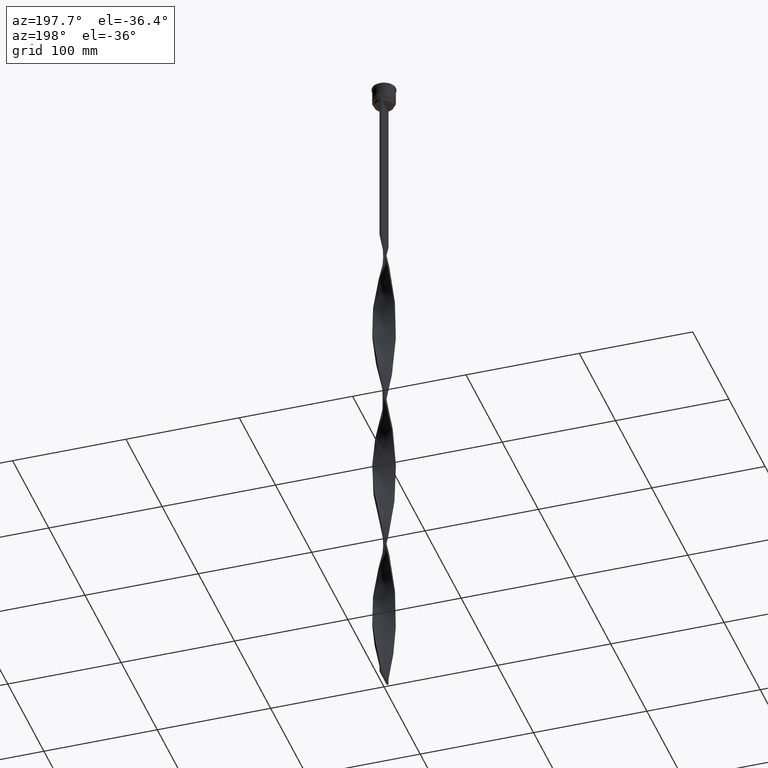
[diagram: clean part render]
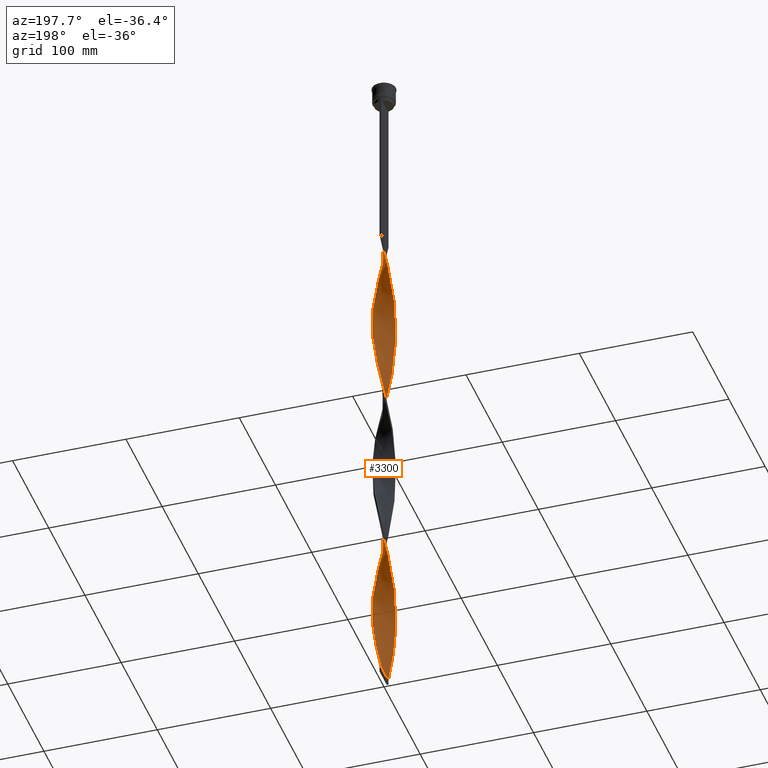
[diagram: same view with one face highlighted and labeled with its STEP entity id]
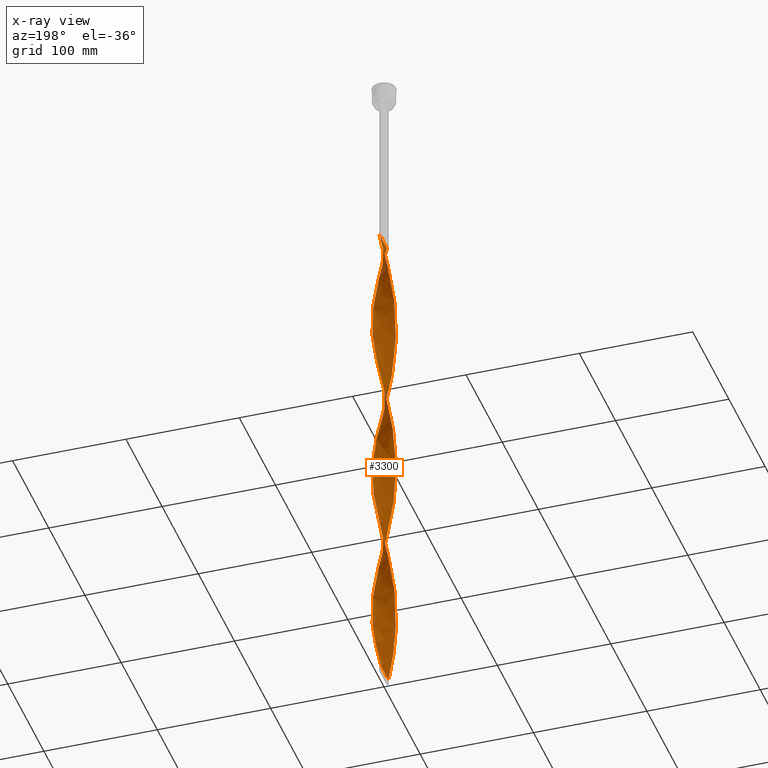
[diagram: x-ray of the same camera — body ghosted, the highlighted face saturated]
A machine part, auxiliary view. The second image highlights one B-rep face of the part: STEP entity #3300.
The next image is the same camera in x-ray: the body ghosted, the highlighted face saturated — about 0% of this face is hidden behind the body in this view.
In plain terms, the highlighted face is a freeform B-spline surface patch.
Its self-contained STEP definition (entity closure, byte-faithful):
#4 = CARTESIAN_POINT ( 'NONE',  ( -2.692256508309368801, -9.682265536257558480, -599.6041666666666288 ) ) ;
#5 = CARTESIAN_POINT ( 'NONE',  ( 5.492599284868785681, 8.390104474668895307, -277.0138888888889142 ) ) ;
#22 = CARTESIAN_POINT ( 'NONE',  ( 8.655543079808081686, 5.106474812894074233, -555.7569444444444571 ) ) ;
#27 = CARTESIAN_POINT ( 'NONE',  ( 4.350480947161677214, 9.035254037844390851, -283.2777777777777146 ) ) ;
#31 = ORIENTED_EDGE ( 'NONE', *, *, #3446, .F. ) ;
#32 = CARTESIAN_POINT ( 'NONE',  ( 2.692256508309366581, -9.682265536257565586, -167.3958333333332860 ) ) ;
#45 = CARTESIAN_POINT ( 'NONE',  ( 3.758279110105993137, 9.320399624033081309, -587.0763888888888005 ) ) ;
#49 = CARTESIAN_POINT ( 'NONE',  ( -3.933013133174654286, -9.248022421870020437, -593.3402777777777146 ) ) ;
#50 = CARTESIAN_POINT ( 'NONE',  ( 8.951782750839056391, 4.519743973034362483, -251.9583333333332860 ) ) ;
#68 = CARTESIAN_POINT ( 'NONE',  ( 7.476962331155807995, -6.682629295305633654, -352.1805555555554861 ) ) ;
#71 = CARTESIAN_POINT ( 'NONE',  ( -3.133924674267440924, -9.525807899386688149, -439.8749999999999432 ) ) ;
#75 = CARTESIAN_POINT ( 'NONE',  ( -7.476962331155809771, 6.682629295305631878, -502.5138888888889142 ) ) ;
#78 = CARTESIAN_POINT ( 'NONE',  ( 4.519743973034364259, -8.951782750839054614, -176.7916666666666572 ) ) ;
#84 = CARTESIAN_POINT ( 'NONE',  ( 9.525807899386689925, -3.133924674267435151, -214.3749999999999716 ) ) ;
#94 = CARTESIAN_POINT ( 'NONE',  ( 9.248022421870020437, -3.933013133174654286, -367.8402777777777146 ) ) ;
#100 = CARTESIAN_POINT ( 'NONE',  ( -9.999999999999998224, 0.7500000000000008882, -233.1666666666666288 ) ) ;
#103 = CARTESIAN_POINT ( 'NONE',  ( 9.525807899386689925, -3.133924674267435151, -515.0416666666666288 ) ) ;
#107 = CARTESIAN_POINT ( 'NONE',  ( 0.7500000000000002220, 9.999999999999998224, -157.9999999999999716 ) ) ;
#122 = CARTESIAN_POINT ( 'NONE',  ( -6.042515785520214955, -8.030100497682090221, -424.2152777777777146 ) ) ;
#127 = CARTESIAN_POINT ( 'NONE',  ( -9.731216174740289659, -2.509570238428876277, -248.8263888888888289 ) ) ;
#141 = CARTESIAN_POINT ( 'NONE',  ( 7.172695297828685312, -7.038959666430929296, -493.1180555555555998 ) ) ;
#147 = CARTESIAN_POINT ( 'NONE',  ( -8.951782750839049285, 4.519743973034362483, -214.3749999999999716 ) ) ;
#161 = CARTESIAN_POINT ( 'NONE',  ( 9.465143979063789459, -3.312634820742016206, -370.9722222222222285 ) ) ;
#167 = CARTESIAN_POINT ( 'NONE',  ( 8.030100497682093774, -6.042515785520210514, -499.3819444444444002 ) ) ;
#172 = CARTESIAN_POINT ( 'NONE',  ( 9.248022421870020437, -3.933013133174654730, -367.8402777777777146 ) ) ;
#188 = CARTESIAN_POINT ( 'NONE',  ( -8.750108451655693287, -4.942682784217351966, -261.3541666666666856 ) ) ;
#192 = CARTESIAN_POINT ( 'NONE',  ( -6.682629295305632766, 7.476962331155817765, -339.6527777777777715 ) ) ;
#195 = CARTESIAN_POINT ( 'NONE',  ( -2.048845568230877934, -9.816553969573064364, -302.0694444444444002 ) ) ;
#197 = CARTESIAN_POINT ( 'NONE',  ( -7.914964995880693799, 6.192563292782586437, -505.6458333333333712 ) ) ;
#198 = CARTESIAN_POINT ( 'NONE',  ( -3.758279110105984699, 9.320399624033077757, -179.9236111111110574 ) ) ;
#202 = CARTESIAN_POINT ( 'NONE',  ( 0.7500000000000002220, 9.999999999999998224, -157.9999999999999716 ) ) ;
#216 = CARTESIAN_POINT ( 'NONE',  ( -6.682629295305632766, 7.476962331155817765, -339.6527777777777715 ) ) ;
#220 = ORIENTED_EDGE ( 'NONE', *, *, #1916, .F. ) ;
#221 = CARTESIAN_POINT ( 'NONE',  ( 2.692256508309369689, 9.682265536257556704, -449.2708333333333712 ) ) ;
#230 = CARTESIAN_POINT ( 'NONE',  ( -9.248022421870020437, 3.933013133174653397, -217.5069444444443718 ) ) ;
#241 = CARTESIAN_POINT ( 'NONE',  ( -10.00000000000000533, -0.7499999999999983347, -383.4999999999999432 ) ) ;
#242 = CARTESIAN_POINT ( 'NONE',  ( 7.914964995880705345, 6.192563292782586437, -562.0208333333331439 ) ) ;
#245 = CARTESIAN_POINT ( 'NONE',  ( -8.951782750839049285, 4.519743973034362483, -515.0416666666666288 ) ) ;
#247 = CARTESIAN_POINT ( 'NONE',  ( 8.390104474668895307, 5.492599284868770582, -414.8194444444444002 ) ) ;
#262 = CARTESIAN_POINT ( 'NONE',  ( -2.048845568230871717, 9.816553969573071470, -314.5972222222221717 ) ) ;
#267 = CARTESIAN_POINT ( 'NONE',  ( 10.04915759711142798, -0.09456537184762517367, -386.6319444444444571 ) ) ;
#282 = CARTESIAN_POINT ( 'NONE',  ( -8.655543079808081686, -5.106474812894073345, -405.4236111111110858 ) ) ;
#283 = CARTESIAN_POINT ( 'NONE',  ( 8.951782750839056391, 4.519743973034362483, -552.6249999999998863 ) ) ;
#288 = CARTESIAN_POINT ( 'NONE',  ( 9.731216174740289659, 2.509570238428876721, -399.1597222222221149 ) ) ;
#292 = CARTESIAN_POINT ( 'NONE',  ( -0.5616782761701574200, 10.01234325790314195, -464.9305555555555429 ) ) ;
#309 = CARTESIAN_POINT ( 'NONE',  ( -3.758279110105998466, -9.320399624033079533, -436.7430555555554861 ) ) ;
#311 = CARTESIAN_POINT ( 'NONE',  ( -5.649519052838331667, -8.285254037844381969, -583.9444444444443434 ) ) ;
#314 = CARTESIAN_POINT ( 'NONE',  ( -10.01234325790314195, -0.5616782761701554216, -540.0972222222221717 ) ) ;
#330 = CARTESIAN_POINT ( 'NONE',  ( 0.7500000000000001110, -10.00000000000000533, -458.6666666666666856 ) ) ;
#334 = CARTESIAN_POINT ( 'NONE',  ( 9.816553969573071470, 2.048845568230872605, -239.4305555555555429 ) ) ;
#347 = CARTESIAN_POINT ( 'NONE',  ( 3.933013133174654286, -9.248022421870029319, -474.3263888888889142 ) ) ;
#352 = CARTESIAN_POINT ( 'NONE',  ( 2.509570238428882050, 9.731216174740294989, -292.6736111111110290 ) ) ;
#368 = CARTESIAN_POINT ( 'NONE',  ( 9.816553969573071470, 2.048845568230872605, -540.0972222222221717 ) ) ;
#376 = CARTESIAN_POINT ( 'NONE',  ( 9.320399624033083086, -3.758279110105990473, -211.2430555555554861 ) ) ;
#392 = CARTESIAN_POINT ( 'NONE',  ( 6.540737725975569461, 7.601397897755389543, -571.4166666666666288 ) ) ;
#396 = CARTESIAN_POINT ( 'NONE',  ( 2.692256508309366581, -9.682265536257565586, -167.3958333333333144 ) ) ;
#414 = CARTESIAN_POINT ( 'NONE',  ( 5.492599284868775023, -8.390104474668893531, -339.6527777777777715 ) ) ;
#416 = CARTESIAN_POINT ( 'NONE',  ( 5.106474812894076010, -8.655543079808081686, -480.5902777777776578 ) ) ;
#418 = CARTESIAN_POINT ( 'NONE',  ( -9.320399624033077757, -3.758279110105983811, -555.7569444444444571 ) ) ;
#421 = CARTESIAN_POINT ( 'NONE',  ( 6.540737725975569461, 7.601397897755389543, -270.7500000000000000 ) ) ;
#435 = CARTESIAN_POINT ( 'NONE',  ( -8.750108451655693287, -4.942682784217351966, -562.0208333333331439 ) ) ;
#446 = CARTESIAN_POINT ( 'NONE',  ( -9.035254037844390851, 4.350480947161678102, -358.4444444444444571 ) ) ;
#452 = CARTESIAN_POINT ( 'NONE',  ( -10.04915759711142798, 0.09456537184761953929, -536.9652777777778283 ) ) ;
#458 = CARTESIAN_POINT ( 'NONE',  ( 8.390104474668895307, 5.492599284868770582, -414.8194444444444002 ) ) ;
#470 = CARTESIAN_POINT ( 'NONE',  ( -10.00000000000000533, -0.7499999999999983347, -383.4999999999999432 ) ) ;
#476 = CARTESIAN_POINT ( 'NONE',  ( 3.133924674267426269, -9.525807899386686373, -327.1250000000000000 ) ) ;
#488 = CARTESIAN_POINT ( 'NONE',  ( -0.5616782761701686333, -10.01234325790314905, -452.4027777777777715 ) ) ;
#494 = CARTESIAN_POINT ( 'NONE',  ( -10.01234325790314195, -0.5616782761701554216, -239.4305555555555429 ) ) ;
#508 = CARTESIAN_POINT ( 'NONE',  ( -9.731216174740289659, -2.509570238428876277, -248.8263888888888289 ) ) ;
#511 = CARTESIAN_POINT ( 'NONE',  ( -7.476962331155820429, -6.682629295305629213, -414.8194444444444002 ) ) ;
#518 = CARTESIAN_POINT ( 'NONE',  ( -8.390104474668893531, -5.492599284868775911, -264.4861111111110858 ) ) ;
#526 =( BOUNDED_SURFACE ( )  B_SPLINE_SURFACE ( 1, 2, ( 
 ( #3926, #3265, #753, #2179, #2652, #4345, #3694, #198, #2934, #4090, #3026, #1241, #2609, #3742, #2631, #3996, #3375, #2956, #147, #1991, #4042, #4434, #3398, #1943, #1524, #1616, #494, #561, #3352, #127, #1266, #3001, #920, #2318, #518, #3716, #1546, #1175, #2583, #2342, #3674, #1569, #825, #2678, #892, #4366, #1199, #4065, #2291, #2249, #3651, #4023, #3327, #541, #476, #1590, #4412, #3306, #1968, #1898, #845, #2270, #866, #1917, #2980, #4391, #1220, #172, #681, #4501, #3099, #1336, #2388, #267, #2747, #4163, #4479, #288, #2410, #4183, #1682, #4459, #247, #632, #989, #2107, #4546, #1706, #3490, #610, #1380, #656, #1311, #221, #1012, #3147, #3809, #3426, #3852, #940, #3788, #4112, #1288, #2792, #4203, #2042, #2060, #1032, #3467, #3122, #4524, #1357, #1639, #585, #2771, #2450, #2429, #3449, #3829, #1662, #2364, #2083, #314, #3057, #1732, #2698, #3763, #2018, #3076, #2721, #4137, #965, #1423, #2880, #1822, #4565, #2836, #4252, #1080, #1775, #1848, #2492, #4297, #3575, #3895 ),
 ( #3166, #3257, #1495, #396, #4228, #2555, #78, #1057, #769, #1752, #745, #3874, #2171, #3235, #2195, #722, #1125, #376, #3531, #3964, #1147, #3918, #2510, #3190, #2147, #793, #334, #3946, #702, #2128, #50, #1402, #1099, #3601, #2812, #2907, #421, #1469, #5, #3512, #27, #2472, #4319, #352, #3553, #1800, #1445, #3212, #2856, #2534, #4272, #884, #1193, #4428, #2627, #819, #2310, #3688, #192, #2997, #4385, #4407, #2245, #1259, #446, #3020, #4360, #2265, #1872, #3711, #1586, #3646, #470, #3348, #2976, #1519, #2928, #1891, #4017, #1236, #2672, #2284, #511, #537, #3301, #122, #1964, #1612, #1169, #2218, #4339, #3668, #841, #2604, #488, #861, #2578, #3371, #1911, #1564, #4086, #1216, #1937, #3321, #4037, #3622, #3989, #141, #3283, #167, #2646, #4059, #1540, #2951, #103, #2037, #1375, #1699, #4541, #1007, #2405, #3049, #2768, #1728, #2425, #3420, #283, #3804, #1987, #242, #1657, #3073, #3759, #3824, #4475, #3118, #984, #1306, #2360, #3443, #3394, #4522, #2788, #2717, #914 ) ),
 .UNSPECIFIED., .F., .F., .F. ) 
 B_SPLINE_SURFACE_WITH_KNOTS ( ( 2, 2 ),
 ( 3, 2, 2, 2, 2, 2, 2, 2, 2, 2, 2, 2, 2, 2, 2, 2, 2, 2, 2, 2, 2, 2, 2, 2, 2, 2, 2, 2, 2, 2, 2, 2, 2, 2, 2, 2, 2, 2, 2, 2, 2, 2, 2, 2, 2, 2, 2, 2, 2, 2, 2, 2, 2, 2, 2, 2, 2, 2, 2, 2, 2, 2, 2, 2, 2, 2, 2, 2, 2, 2, 2, 2, 3 ),
 ( 0.000000000000000000, 1.000000000000000000 ),
 ( 0.000000000000000000, 0.01041666666666666609, 0.02083333333333333218, 0.03125000000000000000, 0.04166666666666666435, 0.05208333333333333565, 0.06250000000000000000, 0.07291666666666667129, 0.08333333333333332871, 0.09375000000000000000, 0.1041666666666666713, 0.1145833333333333287, 0.1250000000000000000, 0.1354166666666666574, 0.1458333333333333426, 0.1562500000000000000, 0.1666666666666666574, 0.1770833333333333426, 0.1875000000000000000, 0.1979166666666666574, 0.2083333333333333426, 0.2187500000000000000, 0.2291666666666666574, 0.2395833333333333426, 0.2500000000000000000, 0.2604166666666666852, 0.2708333333333333148, 0.2812500000000000000, 0.2916666666666666852, 0.3020833333333333148, 0.3125000000000000000, 0.3229166666666666852, 0.3333333333333333148, 0.3437500000000000000, 0.3541666666666666852, 0.3645833333333333148, 0.3750000000000000000, 0.3854166666666666852, 0.3958333333333333148, 0.4062500000000000000, 0.4166666666666666852, 0.4270833333333333148, 0.4375000000000000000, 0.4479166666666666852, 0.4583333333333333148, 0.4687500000000000000, 0.4791666666666666852, 0.4895833333333333148, 0.5000000000000000000, 0.5104166666666666297, 0.5208333333333333703, 0.5312500000000000000, 0.5416666666666666297, 0.5520833333333333703, 0.5625000000000000000, 0.5729166666666666297, 0.5833333333333333703, 0.5937500000000000000, 0.6041666666666666297, 0.6145833333333333703, 0.6250000000000000000, 0.6354166666666666297, 0.6458333333333333703, 0.6562500000000000000, 0.6666666666666666297, 0.6770833333333333703, 0.6875000000000000000, 0.6979166666666666297, 0.7083333333333333703, 0.7187500000000000000, 0.7291666666666666297, 0.7395833333333333703, 0.7500000000000000000 ),
 .UNSPECIFIED. ) 
 GEOMETRIC_REPRESENTATION_ITEM ( )  RATIONAL_B_SPLINE_SURFACE ( (
 ( 1.000000000000000000, 0.9978589232386034791, 1.000000000000000000, 0.9978589232386034791, 1.000000000000000000, 0.9978589232386034791, 1.000000000000000000, 0.9978589232386034791, 1.000000000000000000, 0.9978589232386034791, 1.000000000000000000, 0.9978589232386034791, 1.000000000000000000, 0.9978589232386034791, 1.000000000000000000, 0.9978589232386034791, 1.000000000000000000, 0.9978589232386034791, 1.000000000000000000, 0.9978589232386034791, 1.000000000000000000, 0.9978589232386034791, 1.000000000000000000, 0.9978589232386034791, 1.000000000000000000, 0.9978589232386034791, 1.000000000000000000, 0.9978589232386034791, 1.000000000000000000, 0.9978589232386034791, 1.000000000000000000, 0.9978589232386034791, 1.000000000000000000, 0.9978589232386034791, 1.000000000000000000, 0.9978589232386034791, 1.000000000000000000, 0.9978589232386034791, 1.000000000000000000, 0.9978589232386034791, 1.000000000000000000, 0.9978589232386034791, 1.000000000000000000, 0.9978589232386034791, 1.000000000000000000, 0.9978589232386034791, 1.000000000000000000, 0.9978589232386034791, 1.000000000000000000, 0.9978589232386034791, 1.000000000000000000, 0.9978589232386034791, 1.000000000000000000, 0.9978589232386034791, 1.000000000000000000, 0.9978589232386034791, 1.000000000000000000, 0.9978589232386034791, 1.000000000000000000, 0.9978589232386034791, 1.000000000000000000, 0.9978589232386034791, 1.000000000000000000, 0.9978589232386034791, 1.000000000000000000, 0.9978589232386034791, 1.000000000000000000, 0.9978589232386034791, 1.000000000000000000, 0.9978589232386034791, 1.000000000000000000, 0.9978589232386034791, 1.000000000000000000, 0.9978589232386034791, 1.000000000000000000, 0.9978589232386034791, 1.000000000000000000, 0.9978589232386034791, 1.000000000000000000, 0.9978589232386034791, 1.000000000000000000, 0.9978589232386034791, 1.000000000000000000, 0.9978589232386034791, 1.000000000000000000, 0.9978589232386034791, 1.000000000000000000, 0.9978589232386034791, 1.000000000000000000, 0.9978589232386034791, 1.000000000000000000, 0.9978589232386034791, 1.000000000000000000, 0.9978589232386034791, 1.000000000000000000, 0.9978589232386034791, 1.000000000000000000, 0.9978589232386034791, 1.000000000000000000, 0.9978589232386034791, 1.000000000000000000, 0.9978589232386034791, 1.000000000000000000, 0.9978589232386034791, 1.000000000000000000, 0.9978589232386034791, 1.000000000000000000, 0.9978589232386034791, 1.000000000000000000, 0.9978589232386034791, 1.000000000000000000, 0.9978589232386034791, 1.000000000000000000, 0.9978589232386034791, 1.000000000000000000, 0.9978589232386034791, 1.000000000000000000, 0.9978589232386034791, 1.000000000000000000, 0.9978589232386034791, 1.000000000000000000, 0.9978589232386034791, 1.000000000000000000, 0.9978589232386034791, 1.000000000000000000, 0.9978589232386034791, 1.000000000000000000, 0.9978589232386034791, 1.000000000000000000, 0.9978589232386034791, 1.000000000000000000, 0.9978589232386034791, 1.000000000000000000, 0.9978589232386034791, 1.000000000000000000, 0.9978589232386034791, 1.000000000000000000, 0.9978589232386034791, 1.000000000000000000, 0.9978589232386034791, 1.000000000000000000, 0.9978589232386034791, 1.000000000000000000, 0.9978589232386034791, 1.000000000000000000),
 ( 1.000000000000000000, 0.9978589232386034791, 1.000000000000000000, 0.9978589232386034791, 1.000000000000000000, 0.9978589232386034791, 1.000000000000000000, 0.9978589232386034791, 1.000000000000000000, 0.9978589232386034791, 1.000000000000000000, 0.9978589232386034791, 1.000000000000000000, 0.9978589232386034791, 1.000000000000000000, 0.9978589232386034791, 1.000000000000000000, 0.9978589232386034791, 1.000000000000000000, 0.9978589232386034791, 1.000000000000000000, 0.9978589232386034791, 1.000000000000000000, 0.9978589232386034791, 1.000000000000000000, 0.9978589232386034791, 1.000000000000000000, 0.9978589232386034791, 1.000000000000000000, 0.9978589232386034791, 1.000000000000000000, 0.9978589232386034791, 1.000000000000000000, 0.9978589232386034791, 1.000000000000000000, 0.9978589232386034791, 1.000000000000000000, 0.9978589232386034791, 1.000000000000000000, 0.9978589232386034791, 1.000000000000000000, 0.9978589232386034791, 1.000000000000000000, 0.9978589232386034791, 1.000000000000000000, 0.9978589232386034791, 1.000000000000000000, 0.9978589232386034791, 1.000000000000000000, 0.9978589232386034791, 1.000000000000000000, 0.9978589232386034791, 1.000000000000000000, 0.9978589232386034791, 1.000000000000000000, 0.9978589232386034791, 1.000000000000000000, 0.9978589232386034791, 1.000000000000000000, 0.9978589232386034791, 1.000000000000000000, 0.9978589232386034791, 1.000000000000000000, 0.9978589232386034791, 1.000000000000000000, 0.9978589232386034791, 1.000000000000000000, 0.9978589232386034791, 1.000000000000000000, 0.9978589232386034791, 1.000000000000000000, 0.9978589232386034791, 1.000000000000000000, 0.9978589232386034791, 1.000000000000000000, 0.9978589232386034791, 1.000000000000000000, 0.9978589232386034791, 1.000000000000000000, 0.9978589232386034791, 1.000000000000000000, 0.9978589232386034791, 1.000000000000000000, 0.9978589232386034791, 1.000000000000000000, 0.9978589232386034791, 1.000000000000000000, 0.9978589232386034791, 1.000000000000000000, 0.9978589232386034791, 1.000000000000000000, 0.9978589232386034791, 1.000000000000000000, 0.9978589232386034791, 1.000000000000000000, 0.9978589232386034791, 1.000000000000000000, 0.9978589232386034791, 1.000000000000000000, 0.9978589232386034791, 1.000000000000000000, 0.9978589232386034791, 1.000000000000000000, 0.9978589232386034791, 1.000000000000000000, 0.9978589232386034791, 1.000000000000000000, 0.9978589232386034791, 1.000000000000000000, 0.9978589232386034791, 1.000000000000000000, 0.9978589232386034791, 1.000000000000000000, 0.9978589232386034791, 1.000000000000000000, 0.9978589232386034791, 1.000000000000000000, 0.9978589232386034791, 1.000000000000000000, 0.9978589232386034791, 1.000000000000000000, 0.9978589232386034791, 1.000000000000000000, 0.9978589232386034791, 1.000000000000000000, 0.9978589232386034791, 1.000000000000000000, 0.9978589232386034791, 1.000000000000000000, 0.9978589232386034791, 1.000000000000000000, 0.9978589232386034791, 1.000000000000000000, 0.9978589232386034791, 1.000000000000000000, 0.9978589232386034791, 1.000000000000000000, 0.9978589232386034791, 1.000000000000000000, 0.9978589232386034791, 1.000000000000000000, 0.9978589232386034791, 1.000000000000000000, 0.9978589232386034791, 1.000000000000000000) ) ) 
 REPRESENTATION_ITEM ( '' )  SURFACE ( )  );
#529 = CARTESIAN_POINT ( 'NONE',  ( 9.816553969573060812, -2.048845568230882375, -377.2361111111110858 ) ) ;
#531 = CARTESIAN_POINT ( 'NONE',  ( -0.7499999999999988898, 10.00000000000000533, -609.0000000000000000 ) ) ;
#534 = CARTESIAN_POINT ( 'NONE',  ( -9.320399624033077757, -3.758279110105983811, -255.0902777777777146 ) ) ;
#537 = CARTESIAN_POINT ( 'NONE',  ( -7.038959666430931073, -7.172695297828680872, -417.9513888888888005 ) ) ;
#541 = CARTESIAN_POINT ( 'NONE',  ( 2.509570238428873168, -9.731216174740289659, -323.9930555555555429 ) ) ;
#561 = CARTESIAN_POINT ( 'NONE',  ( -9.975528918694857694, -1.217921924187930438, -242.5624999999999147 ) ) ;
#565 = CARTESIAN_POINT ( 'NONE',  ( -9.853372546717572789, -1.863746081308404801, -546.3611111111110858 ) ) ;
#578 = CARTESIAN_POINT ( 'NONE',  ( -9.525807899386688149, 3.133924674267440036, -364.7083333333333144 ) ) ;
#585 = CARTESIAN_POINT ( 'NONE',  ( -8.655543079808074580, 5.106474812894075122, -511.9097222222220580 ) ) ;
#604 = CARTESIAN_POINT ( 'NONE',  ( 1.217921924187938210, 9.975528918694864799, -298.9374999999999432 ) ) ;
#610 = CARTESIAN_POINT ( 'NONE',  ( 5.106474812894082227, 8.655543079808069251, -436.7430555555554861 ) ) ;
#625 = CARTESIAN_POINT ( 'NONE',  ( -8.030100497682093774, 6.042515785520210514, -349.0486111111110858 ) ) ;
#632 = CARTESIAN_POINT ( 'NONE',  ( 8.030100497682091998, 6.042515785520198968, -417.9513888888888005 ) ) ;
#640 = CARTESIAN_POINT ( 'NONE',  ( 7.172695297828685312, 7.038959666430918638, -424.2152777777777146 ) ) ;
#648 = CARTESIAN_POINT ( 'NONE',  ( -4.942682784217367065, -8.750108451655693287, -430.4791666666666288 ) ) ;
#651 = CARTESIAN_POINT ( 'NONE',  ( -8.951782750839049285, 4.519743973034362483, -214.3749999999999716 ) ) ;
#653 = CARTESIAN_POINT ( 'NONE',  ( -6.192563292782588213, -7.914964995880693799, -580.8124999999998863 ) ) ;
#656 = CARTESIAN_POINT ( 'NONE',  ( 3.933013133174654730, 9.248022421870020437, -443.0069444444444002 ) ) ;
#677 = CARTESIAN_POINT ( 'NONE',  ( -3.312634820742005992, 9.465143979063800117, -320.8611111111110858 ) ) ;
#678 = DIRECTION ( 'NONE',  ( 0.000000000000000000, 1.000000000000000000, 0.000000000000000000 ) ) ;
#681 = CARTESIAN_POINT ( 'NONE',  ( 9.465143979063789459, -3.312634820742016206, -370.9722222222222285 ) ) ;
#697 = CARTESIAN_POINT ( 'NONE',  ( -0.5616782761701686333, -10.01234325790314905, -452.4027777777777715 ) ) ;
#702 = CARTESIAN_POINT ( 'NONE',  ( 9.465143979063798341, 3.312634820742009101, -245.6944444444444287 ) ) ;
#717 = CARTESIAN_POINT ( 'NONE',  ( 8.030100497682093774, -6.042515785520209626, -499.3819444444444002 ) ) ;
#722 = CARTESIAN_POINT ( 'NONE',  ( 8.750108451655698616, -4.942682784217360847, -204.9791666666666288 ) ) ;
#737 = CARTESIAN_POINT ( 'NONE',  ( 9.035254037844390851, -4.350480947161673662, -508.7777777777777715 ) ) ;
#745 = CARTESIAN_POINT ( 'NONE',  ( 6.682629295305634543, -7.476962331155817765, -189.3194444444444287 ) ) ;
#750 = CARTESIAN_POINT ( 'NONE',  ( -1.863746081308405689, 9.853372546717572789, -170.5277777777777430 ) ) ;
#752 = CARTESIAN_POINT ( 'NONE',  ( 7.172695297828685312, -7.038959666430928408, -192.4513888888888289 ) ) ;
#753 = CARTESIAN_POINT ( 'NONE',  ( -0.5616782761701575311, 10.01234325790314195, -164.2638888888888857 ) ) ;
#763 = CARTESIAN_POINT ( 'NONE',  ( 6.042515785520199856, -8.030100497682091998, -342.7847222222222285 ) ) ;
#765 = CARTESIAN_POINT ( 'NONE',  ( -0.09456537184761260040, 10.04915759711143508, -605.8680555555555429 ) ) ;
#769 = CARTESIAN_POINT ( 'NONE',  ( 5.649519052838331667, -8.285254037844390851, -183.0555555555555145 ) ) ;
#776 = CARTESIAN_POINT ( 'NONE',  ( 9.320399624033083086, -3.758279110105990473, -211.2430555555555145 ) ) ;
#781 = CARTESIAN_POINT ( 'NONE',  ( 9.853372546717572789, 1.863746081308401026, -396.0277777777777715 ) ) ;
#791 = CARTESIAN_POINT ( 'NONE',  ( -8.030100497682091998, -6.042515785520199856, -267.6180555555554861 ) ) ;
#793 = CARTESIAN_POINT ( 'NONE',  ( 9.950842402888577354, 1.405434628152381071, -236.2986111111110574 ) ) ;
#799 = CARTESIAN_POINT ( 'NONE',  ( 9.853372546717578118, -1.863746081308409464, -220.6388888888888857 ) ) ;
#805 = CARTESIAN_POINT ( 'NONE',  ( -9.465143979063789459, 3.312634820742010433, -220.6388888888888857 ) ) ;
#806 = CARTESIAN_POINT ( 'NONE',  ( -0.7500000000000014433, -9.999999999999998224, -308.3333333333333712 ) ) ;
#819 = CARTESIAN_POINT ( 'NONE',  ( -5.106474812894074233, 8.655543079808083462, -330.2569444444443434 ) ) ;
#825 = CARTESIAN_POINT ( 'NONE',  ( -4.519743973034363371, -8.951782750839049285, -289.5416666666666288 ) ) ;
#841 = CARTESIAN_POINT ( 'NONE',  ( -1.863746081308415681, -9.853372546717576341, -446.1388888888888573 ) ) ;
#845 = CARTESIAN_POINT ( 'NONE',  ( 6.540737725975558803, -7.601397897755388655, -345.9166666666666288 ) ) ;
#853 = CARTESIAN_POINT ( 'NONE',  ( 8.951782750839045733, -4.519743973034367812, -364.7083333333333144 ) ) ;
#858 = CARTESIAN_POINT ( 'NONE',  ( 1.405434628152388177, 9.950842402888570248, -455.5347222222221149 ) ) ;
#859 = CARTESIAN_POINT ( 'NONE',  ( -9.950842402888570248, 1.405434628152384180, -230.0347222222222001 ) ) ;
#861 = CARTESIAN_POINT ( 'NONE',  ( 0.09456537184761140691, -10.04915759711143508, -455.5347222222221149 ) ) ;
#866 = CARTESIAN_POINT ( 'NONE',  ( 7.476962331155807995, -6.682629295305633654, -352.1805555555554861 ) ) ;
#878 = CARTESIAN_POINT ( 'NONE',  ( 3.312634820742016650, 9.465143979063789459, -446.1388888888888573 ) ) ;
#879 = CARTESIAN_POINT ( 'NONE',  ( -10.04915759711142798, 0.09456537184761953929, -236.2986111111110574 ) ) ;
#882 = CARTESIAN_POINT ( 'NONE',  ( 8.390104474668897083, -5.492599284868783904, -201.8472222222222001 ) ) ;
#884 = CARTESIAN_POINT ( 'NONE',  ( -2.692256508309363028, 9.682265536257567362, -317.7291666666665151 ) ) ;
#890 = VERTEX_POINT ( 'NONE', #3572 ) ;
#892 = CARTESIAN_POINT ( 'NONE',  ( -3.312634820742010877, -9.465143979063789459, -295.8055555555555429 ) ) ;
#900 = CARTESIAN_POINT ( 'NONE',  ( 9.950842402888570248, -1.405434628152387733, -380.3680555555554861 ) ) ;
#913 = CARTESIAN_POINT ( 'NONE',  ( 4.519743973034364259, -8.951782750839054614, -176.7916666666666572 ) ) ;
#914 = CARTESIAN_POINT ( 'NONE',  ( -0.7499999999999988898, 10.00000000000000533, -609.0000000000000000 ) ) ;
#917 = CARTESIAN_POINT ( 'NONE',  ( -1.405434628152387289, -9.950842402888570248, -305.2013888888888573 ) ) ;
#920 = CARTESIAN_POINT ( 'NONE',  ( -9.035254037844387298, -4.350480947161667444, -258.2222222222221717 ) ) ;
#935 = CARTESIAN_POINT ( 'NONE',  ( -9.320399624033083086, 3.758279110105989584, -361.5763888888888005 ) ) ;
#940 = CARTESIAN_POINT ( 'NONE',  ( -1.217921924187932881, 9.975528918694859470, -468.0624999999999432 ) ) ;
#959 = CARTESIAN_POINT ( 'NONE',  ( 7.914964995880704457, 6.192563292782586437, -261.3541666666666856 ) ) ;
#965 = CARTESIAN_POINT ( 'NONE',  ( -8.030100497682091998, -6.042515785520200744, -568.2847222222220580 ) ) ;
#983 = CARTESIAN_POINT ( 'NONE',  ( -10.01234325790314905, 0.5616782761701678561, -377.2361111111110858 ) ) ;
#984 = CARTESIAN_POINT ( 'NONE',  ( 4.350480947161677214, 9.035254037844390851, -583.9444444444443434 ) ) ;
#986 = CARTESIAN_POINT ( 'NONE',  ( -7.038959666430921303, 7.172695297828681760, -198.7152777777777430 ) ) ;
#989 = CARTESIAN_POINT ( 'NONE',  ( 7.601397897755385991, 6.540737725975562356, -421.0833333333333144 ) ) ;
#1004 = CARTESIAN_POINT ( 'NONE',  ( -2.048845568230877934, -9.816553969573064364, -602.7361111111110858 ) ) ;
#1006 = CARTESIAN_POINT ( 'NONE',  ( -6.042515785520214067, -8.030100497682090221, -424.2152777777777146 ) ) ;
#1007 = CARTESIAN_POINT ( 'NONE',  ( 10.04915759711143508, 0.09456537184761544534, -530.7013888888888005 ) ) ;
#1012 = CARTESIAN_POINT ( 'NONE',  ( 2.048845568230883263, 9.816553969573060812, -452.4027777777777715 ) ) ;
#1027 = CARTESIAN_POINT ( 'NONE',  ( 0.5616782761701627491, 10.01234325790314905, -302.0694444444444002 ) ) ;
#1032 = CARTESIAN_POINT ( 'NONE',  ( -6.042515785520205185, 8.030100497682090221, -493.1180555555555998 ) ) ;
#1053 = CARTESIAN_POINT ( 'NONE',  ( 6.192563292782588213, -7.914964995880702681, -486.8541666666665719 ) ) ;
#1057 = CARTESIAN_POINT ( 'NONE',  ( 5.106474812894076010, -8.655543079808083462, -179.9236111111110574 ) ) ;
#1060 = CARTESIAN_POINT ( 'NONE',  ( -1.405434628152387289, -9.950842402888570248, -605.8680555555555429 ) ) ;
#1075 = CARTESIAN_POINT ( 'NONE',  ( 8.390104474668897083, -5.492599284868783904, -502.5138888888889142 ) ) ;
#1080 = CARTESIAN_POINT ( 'NONE',  ( -4.519743973034363371, -8.951782750839049285, -590.2083333333333712 ) ) ;
#1093 = CARTESIAN_POINT ( 'NONE',  ( 8.285254037844390851, 5.649519052838329891, -558.8888888888889142 ) ) ;
#1099 = CARTESIAN_POINT ( 'NONE',  ( 8.285254037844390851, 5.649519052838329891, -258.2222222222221717 ) ) ;
#1117 = CARTESIAN_POINT ( 'NONE',  ( 3.133924674267436039, 9.525807899386689925, -590.2083333333333712 ) ) ;
#1122 = CARTESIAN_POINT ( 'NONE',  ( -5.492599284868777687, 8.390104474668893531, -489.9861111111111427 ) ) ;
#1125 = CARTESIAN_POINT ( 'NONE',  ( 9.035254037844390851, -4.350480947161673662, -208.1111111111110858 ) ) ;
#1129 = CARTESIAN_POINT ( 'NONE',  ( -7.601397897755385102, -6.540737725975563244, -571.4166666666666288 ) ) ;
#1140 = VECTOR ( 'NONE', #678, 1000.000000000000000 ) ;
#1142 = CARTESIAN_POINT ( 'NONE',  ( 9.682265536257567362, 2.692256508309363472, -543.2291666666665151 ) ) ;
#1147 = CARTESIAN_POINT ( 'NONE',  ( 9.853372546717578118, -1.863746081308409464, -220.6388888888888857 ) ) ;
#1169 = CARTESIAN_POINT ( 'NONE',  ( -4.350480947161678102, -9.035254037844389075, -433.6111111111110858 ) ) ;
#1174 = CARTESIAN_POINT ( 'NONE',  ( 10.01234325790314905, -0.5616782761701598625, -226.9027777777777715 ) ) ;
#1175 = CARTESIAN_POINT ( 'NONE',  ( -7.172695297828680872, -7.038959666430922191, -273.8819444444444002 ) ) ;
#1180 = CARTESIAN_POINT ( 'NONE',  ( 9.525807899386686373, 3.133924674267425381, -402.2916666666666856 ) ) ;
#1193 = CARTESIAN_POINT ( 'NONE',  ( -3.312634820742005992, 9.465143979063800117, -320.8611111111110858 ) ) ;
#1195 = CARTESIAN_POINT ( 'NONE',  ( -6.042515785520203409, 8.030100497682090221, -192.4513888888888289 ) ) ;
#1199 = CARTESIAN_POINT ( 'NONE',  ( -2.048845568230877934, -9.816553969573064364, -302.0694444444444002 ) ) ;
#1216 = CARTESIAN_POINT ( 'NONE',  ( 3.933013133174654730, -9.248022421870031096, -474.3263888888889142 ) ) ;
#1220 = CARTESIAN_POINT ( 'NONE',  ( 8.951782750839045733, -4.519743973034367812, -364.7083333333333144 ) ) ;
#1236 = CARTESIAN_POINT ( 'NONE',  ( -8.655543079808083462, -5.106474812894073345, -405.4236111111110858 ) ) ;
#1241 = CARTESIAN_POINT ( 'NONE',  ( -6.042515785520205185, 8.030100497682090221, -192.4513888888888289 ) ) ;
#1259 = CARTESIAN_POINT ( 'NONE',  ( -8.750108451655695063, 4.942682784217367065, -355.3124999999998863 ) ) ;
#1266 = CARTESIAN_POINT ( 'NONE',  ( -9.525807899386684596, -3.133924674267429378, -251.9583333333332860 ) ) ;
#1282 = CARTESIAN_POINT ( 'NONE',  ( 3.758279110105993137, 9.320399624033081309, -286.4097222222221717 ) ) ;
#1288 = CARTESIAN_POINT ( 'NONE',  ( -3.133924674267432042, 9.525807899386684596, -477.4583333333333144 ) ) ;
#1303 = CARTESIAN_POINT ( 'NONE',  ( -5.649519052838331667, -8.285254037844381969, -283.2777777777777146 ) ) ;
#1305 = CARTESIAN_POINT ( 'NONE',  ( -9.465143979063800117, -3.312634820742005548, -396.0277777777777715 ) ) ;
#1306 = CARTESIAN_POINT ( 'NONE',  ( 3.758279110105993137, 9.320399624033081309, -587.0763888888889142 ) ) ;
#1308 = CARTESIAN_POINT ( 'NONE',  ( 3.133924674267426269, -9.525807899386686373, -327.1250000000000000 ) ) ;
#1310 = CARTESIAN_POINT ( 'NONE',  ( -9.465143979063789459, 3.312634820742010433, -521.3055555555554292 ) ) ;
#1311 = CARTESIAN_POINT ( 'NONE',  ( 3.312634820742016650, 9.465143979063789459, -446.1388888888888573 ) ) ;
#1328 = CARTESIAN_POINT ( 'NONE',  ( 3.133924674267436039, 9.525807899386689925, -289.5416666666666288 ) ) ;
#1336 = CARTESIAN_POINT ( 'NONE',  ( 9.950842402888570248, -1.405434628152387511, -380.3680555555554861 ) ) ;
#1354 = CARTESIAN_POINT ( 'NONE',  ( 2.509570238428882050, 9.731216174740294989, -292.6736111111110858 ) ) ;
#1357 = CARTESIAN_POINT ( 'NONE',  ( -7.914964995880694687, 6.192563292782586437, -505.6458333333333712 ) ) ;
#1360 = CARTESIAN_POINT ( 'NONE',  ( -0.7500000000000014433, -9.999999999999998224, -609.0000000000000000 ) ) ;
#1374 = CARTESIAN_POINT ( 'NONE',  ( 9.682265536257567362, 2.692256508309363472, -242.5624999999999432 ) ) ;
#1375 = CARTESIAN_POINT ( 'NONE',  ( 9.853372546717578118, -1.863746081308409464, -521.3055555555554292 ) ) ;
#1380 = CARTESIAN_POINT ( 'NONE',  ( 4.519743973034367812, 8.951782750839045733, -439.8749999999999432 ) ) ;
#1396 = CARTESIAN_POINT ( 'NONE',  ( 9.950842402888575577, 1.405434628152381071, -536.9652777777778283 ) ) ;
#1402 = CARTESIAN_POINT ( 'NONE',  ( 8.655543079808083462, 5.106474812894074233, -255.0902777777776862 ) ) ;
#1423 = CARTESIAN_POINT ( 'NONE',  ( -7.601397897755385102, -6.540737725975563244, -571.4166666666666288 ) ) ;
#1441 = CARTESIAN_POINT ( 'NONE',  ( 9.853372546717578118, -1.863746081308409464, -521.3055555555554292 ) ) ;
#1445 = CARTESIAN_POINT ( 'NONE',  ( 0.5616782761701627491, 10.01234325790314905, -302.0694444444444002 ) ) ;
#1450 = CARTESIAN_POINT ( 'NONE',  ( 3.933013133174654286, -9.248022421870029319, -173.6597222222221717 ) ) ;
#1463 = CARTESIAN_POINT ( 'NONE',  ( 4.350480947161677214, 9.035254037844390851, -583.9444444444443434 ) ) ;
#1468 = CARTESIAN_POINT ( 'NONE',  ( -3.312634820742010877, -9.465143979063789459, -596.4722222222222854 ) ) ;
#1469 = CARTESIAN_POINT ( 'NONE',  ( 6.042515785520210514, 8.030100497682093774, -273.8819444444444002 ) ) ;
#1475 = CARTESIAN_POINT ( 'NONE',  ( 6.682629295305634543, -7.476962331155817765, -189.3194444444444287 ) ) ;
#1488 = CARTESIAN_POINT ( 'NONE',  ( 5.649519052838331667, -8.285254037844390851, -483.7222222222222285 ) ) ;
#1495 = CARTESIAN_POINT ( 'NONE',  ( 2.048845568230874381, -9.816553969573071470, -164.2638888888888857 ) ) ;
#1516 = CARTESIAN_POINT ( 'NONE',  ( -8.390104474668893531, -5.492599284868775023, -264.4861111111110858 ) ) ;
#1518 = EDGE_CURVE ( 'NONE', #2854, #2216, #2281, .T. ) ;
#1519 = CARTESIAN_POINT ( 'NONE',  ( -9.682265536257569138, -2.692256508309357699, -392.8958333333332575 ) ) ;
#1523 = CARTESIAN_POINT ( 'NONE',  ( 3.312634820742009989, -9.465143979063798341, -170.5277777777777430 ) ) ;
#1524 = CARTESIAN_POINT ( 'NONE',  ( -9.999999999999998224, 0.7500000000000007772, -233.1666666666666288 ) ) ;
#1525 = CARTESIAN_POINT ( 'NONE',  ( -0.7500000000000014433, -9.999999999999998224, -609.0000000000000000 ) ) ;
#1533 = CARTESIAN_POINT ( 'NONE',  ( 8.655543079808072804, -5.106474812894073345, -361.5763888888888005 ) ) ;
#1538 = CARTESIAN_POINT ( 'NONE',  ( -9.816553969573064364, 2.048845568230875269, -226.9027777777777715 ) ) ;
#1540 = CARTESIAN_POINT ( 'NONE',  ( 9.035254037844390851, -4.350480947161673662, -508.7777777777777715 ) ) ;
#1546 = CARTESIAN_POINT ( 'NONE',  ( -7.601397897755385102, -6.540737725975563244, -270.7500000000000000 ) ) ;
#1551 = CARTESIAN_POINT ( 'NONE',  ( 10.04915759711142798, -0.09456537184762528470, -386.6319444444444571 ) ) ;
#1564 = CARTESIAN_POINT ( 'NONE',  ( 2.692256508309366581, -9.682265536257565586, -468.0624999999999432 ) ) ;
#1569 = CARTESIAN_POINT ( 'NONE',  ( -5.106474812894076898, -8.655543079808074580, -286.4097222222221717 ) ) ;
#1579 = CARTESIAN_POINT ( 'NONE',  ( -3.133924674267432042, 9.525807899386684596, -176.7916666666666572 ) ) ;
#1586 = CARTESIAN_POINT ( 'NONE',  ( -10.01234325790314905, 0.5616782761701678561, -377.2361111111110858 ) ) ;
#1590 = CARTESIAN_POINT ( 'NONE',  ( 3.758279110105982923, -9.320399624033077757, -330.2569444444443434 ) ) ;
#1612 = CARTESIAN_POINT ( 'NONE',  ( -4.942682784217367065, -8.750108451655693287, -430.4791666666666288 ) ) ;
#1616 = CARTESIAN_POINT ( 'NONE',  ( -10.04915759711142798, 0.09456537184761942827, -236.2986111111110574 ) ) ;
#1632 = CARTESIAN_POINT ( 'NONE',  ( -7.172695297828681760, 7.038959666430931073, -342.7847222222222285 ) ) ;
#1639 = CARTESIAN_POINT ( 'NONE',  ( -8.285254037844383745, 5.649519052838329891, -508.7777777777777715 ) ) ;
#1656 = CARTESIAN_POINT ( 'NONE',  ( -5.649519052838329891, 8.285254037844392627, -333.3888888888888573 ) ) ;
#1657 = CARTESIAN_POINT ( 'NONE',  ( 7.476962331155817765, 6.682629295305632766, -565.1527777777778283 ) ) ;
#1662 = CARTESIAN_POINT ( 'NONE',  ( -9.950842402888570248, 1.405434628152383958, -530.7013888888888005 ) ) ;
#1676 = CARTESIAN_POINT ( 'NONE',  ( -6.192563292782586437, 7.914964995880706233, -336.5208333333332575 ) ) ;
#1682 = CARTESIAN_POINT ( 'NONE',  ( 9.035254037844389075, 4.350480947161663003, -408.5555555555555429 ) ) ;
#1689 = EDGE_CURVE ( 'NONE', #2427, #890, #3081, .T. ) ;
#1698 = CARTESIAN_POINT ( 'NONE',  ( -8.390104474668895307, 5.492599284868785681, -352.1805555555554861 ) ) ;
#1699 = CARTESIAN_POINT ( 'NONE',  ( 9.975528918694866576, -1.217921924187935545, -524.4375000000000000 ) ) ;
#1700 = CARTESIAN_POINT ( 'NONE',  ( -8.285254037844383745, 5.649519052838329891, -208.1111111111110858 ) ) ;
#1706 = CARTESIAN_POINT ( 'NONE',  ( 6.192563292782591766, 7.914964995880691134, -430.4791666666666288 ) ) ;
#1709 = EDGE_LOOP ( 'NONE', ( #31, #4523, #220, #3036 ) ) ;
#1710 = CARTESIAN_POINT ( 'NONE',  ( -5.106474812894076010, -8.655543079808072804, -587.0763888888888005 ) ) ;
#1727 = CARTESIAN_POINT ( 'NONE',  ( 9.816553969573071470, 2.048845568230872605, -239.4305555555555429 ) ) ;
#1728 = CARTESIAN_POINT ( 'NONE',  ( 9.682265536257567362, 2.692256508309363472, -543.2291666666665151 ) ) ;
#1732 = CARTESIAN_POINT ( 'NONE',  ( -9.853372546717572789, -1.863746081308404801, -546.3611111111110858 ) ) ;
#1746 = CARTESIAN_POINT ( 'NONE',  ( 3.312634820742009989, -9.465143979063798341, -471.1944444444444002 ) ) ;
#1752 = CARTESIAN_POINT ( 'NONE',  ( 6.192563292782588213, -7.914964995880703569, -186.1875000000000000 ) ) ;
#1766 = CARTESIAN_POINT ( 'NONE',  ( 6.540737725975558803, -7.601397897755388655, -345.9166666666666288 ) ) ;
#1769 = CARTESIAN_POINT ( 'NONE',  ( 4.519743973034364259, -8.951782750839054614, -477.4583333333333144 ) ) ;
#1775 = CARTESIAN_POINT ( 'NONE',  ( -3.933013133174654730, -9.248022421870020437, -593.3402777777778283 ) ) ;
#1795 = CARTESIAN_POINT ( 'NONE',  ( 10.00000000000000533, 0.7499999999999994449, -533.8333333333333712 ) ) ;
#1800 = CARTESIAN_POINT ( 'NONE',  ( 1.217921924187938432, 9.975528918694866576, -298.9374999999999432 ) ) ;
#1818 = CARTESIAN_POINT ( 'NONE',  ( 5.492599284868785681, 8.390104474668895307, -577.6805555555555429 ) ) ;
#1822 = CARTESIAN_POINT ( 'NONE',  ( -6.682629295305633654, -7.476962331155807995, -577.6805555555555429 ) ) ;
#1833 = CARTESIAN_POINT ( 'NONE',  ( 9.320399624033077757, 3.758279110105982923, -405.4236111111110858 ) ) ;
#1834 = CARTESIAN_POINT ( 'NONE',  ( 1.217921924187929772, -9.975528918694857694, -317.7291666666665719 ) ) ;
#1843 = CARTESIAN_POINT ( 'NONE',  ( 9.525807899386689925, -3.133924674267435151, -515.0416666666666288 ) ) ;
#1845 = CARTESIAN_POINT ( 'NONE',  ( -7.038959666430921303, 7.172695297828681760, -499.3819444444444002 ) ) ;
#1848 = CARTESIAN_POINT ( 'NONE',  ( -3.312634820742010877, -9.465143979063789459, -596.4722222222222854 ) ) ;
#1868 = CARTESIAN_POINT ( 'NONE',  ( -7.172695297828681760, -7.038959666430921303, -273.8819444444443434 ) ) ;
#1872 = CARTESIAN_POINT ( 'NONE',  ( -9.853372546717576341, 1.863746081308415237, -370.9722222222222285 ) ) ;
#1891 = CARTESIAN_POINT ( 'NONE',  ( -9.248022421870031096, -3.933013133174653841, -399.1597222222221149 ) ) ;
#1894 = CARTESIAN_POINT ( 'NONE',  ( -4.942682784217354630, 8.750108451655691510, -186.1874999999999716 ) ) ;
#1896 = CARTESIAN_POINT ( 'NONE',  ( 0.09456537184761812376, 10.04915759711142798, -161.1319444444444002 ) ) ;
#1898 = CARTESIAN_POINT ( 'NONE',  ( 6.042515785520200744, -8.030100497682091998, -342.7847222222222285 ) ) ;
#1902 = CARTESIAN_POINT ( 'NONE',  ( -2.692256508309368801, -9.682265536257558480, -298.9374999999999432 ) ) ;
#1911 = CARTESIAN_POINT ( 'NONE',  ( 2.048845568230874381, -9.816553969573071470, -464.9305555555555429 ) ) ;
#1916 = EDGE_CURVE ( 'NONE', #2216, #890, #2115, .T. ) ;
#1917 = CARTESIAN_POINT ( 'NONE',  ( 7.914964995880691134, -6.192563292782591766, -355.3124999999998863 ) ) ;
#1937 = CARTESIAN_POINT ( 'NONE',  ( 4.519743973034364259, -8.951782750839054614, -477.4583333333333144 ) ) ;
#1943 = CARTESIAN_POINT ( 'NONE',  ( -9.950842402888570248, 1.405434628152383958, -230.0347222222222001 ) ) ;
#1961 = CARTESIAN_POINT ( 'NONE',  ( -9.035254037844387298, -4.350480947161667444, -258.2222222222221717 ) ) ;
#1964 = CARTESIAN_POINT ( 'NONE',  ( -5.492599284868786569, -8.390104474668895307, -427.3472222222222285 ) ) ;
#1968 = CARTESIAN_POINT ( 'NONE',  ( 5.492599284868775911, -8.390104474668893531, -339.6527777777777715 ) ) ;
#1986 = CARTESIAN_POINT ( 'NONE',  ( 0.7500000000000001110, -10.00000000000000533, -157.9999999999999716 ) ) ;
#1987 = CARTESIAN_POINT ( 'NONE',  ( 8.285254037844390851, 5.649519052838329891, -558.8888888888889142 ) ) ;
#1991 = CARTESIAN_POINT ( 'NONE',  ( -9.248022421870020437, 3.933013133174653841, -217.5069444444443718 ) ) ;
#2009 = CARTESIAN_POINT ( 'NONE',  ( -9.853372546717576341, 1.863746081308415237, -370.9722222222222285 ) ) ;
#2017 = CARTESIAN_POINT ( 'NONE',  ( -8.655543079808072804, 5.106474812894075122, -511.9097222222220580 ) ) ;
#2018 = CARTESIAN_POINT ( 'NONE',  ( -9.320399624033077757, -3.758279110105983811, -555.7569444444444571 ) ) ;
#2019 = CARTESIAN_POINT ( 'NONE',  ( 0.7500000000000001110, -10.00000000000000533, -157.9999999999999716 ) ) ;
#2036 = CARTESIAN_POINT ( 'NONE',  ( 8.285254037844390851, 5.649519052838329891, -258.2222222222221717 ) ) ;
#2037 = CARTESIAN_POINT ( 'NONE',  ( 9.731216174740294989, -2.509570238428881606, -518.1736111111110858 ) ) ;
#2042 = CARTESIAN_POINT ( 'NONE',  ( -4.942682784217354630, 8.750108451655691510, -486.8541666666665719 ) ) ;
#2055 = CARTESIAN_POINT ( 'NONE',  ( 7.038959666430931073, 7.172695297828681760, -267.6180555555554861 ) ) ;
#2060 = CARTESIAN_POINT ( 'NONE',  ( -5.492599284868777687, 8.390104474668893531, -489.9861111111111427 ) ) ;
#2077 = CARTESIAN_POINT ( 'NONE',  ( -7.038959666430931073, -7.172695297828680872, -417.9513888888888573 ) ) ;
#2083 = CARTESIAN_POINT ( 'NONE',  ( -10.04915759711142798, 0.09456537184761942827, -536.9652777777778283 ) ) ;
#2102 = CARTESIAN_POINT ( 'NONE',  ( 6.682629295305634543, -7.476962331155817765, -489.9861111111111427 ) ) ;
#2107 = CARTESIAN_POINT ( 'NONE',  ( 7.172695297828685312, 7.038959666430918638, -424.2152777777777146 ) ) ;
#2115 = B_SPLINE_CURVE_WITH_KNOTS ( 'NONE', 3,
 ( #4334, #4014, #2212, #531 ),
 .UNSPECIFIED., .F., .F.,
 ( 4, 4 ),
 ( 0.000000000000000000, 1.000000000000000000 ),
 .UNSPECIFIED. ) ;
#2128 = CARTESIAN_POINT ( 'NONE',  ( 9.248022421870031096, 3.933013133174652953, -248.8263888888888289 ) ) ;
#2142 = CARTESIAN_POINT ( 'NONE',  ( 2.692256508309366581, -9.682265536257565586, -468.0624999999999432 ) ) ;
#2145 = CARTESIAN_POINT ( 'NONE',  ( -4.350480947161669221, 9.035254037844387298, -483.7222222222222285 ) ) ;
#2147 = CARTESIAN_POINT ( 'NONE',  ( 10.00000000000000533, 0.7499999999999994449, -233.1666666666666288 ) ) ;
#2166 = CARTESIAN_POINT ( 'NONE',  ( 10.04915759711143508, 0.09456537184761543147, -530.7013888888888005 ) ) ;
#2171 = CARTESIAN_POINT ( 'NONE',  ( 7.601397897755390431, -6.540737725975569461, -195.5833333333333144 ) ) ;
#2179 = CARTESIAN_POINT ( 'NONE',  ( -1.217921924187932881, 9.975528918694859470, -167.3958333333333144 ) ) ;
#2193 = CARTESIAN_POINT ( 'NONE',  ( -6.042515785520203409, 8.030100497682090221, -493.1180555555555429 ) ) ;
#2195 = CARTESIAN_POINT ( 'NONE',  ( 8.390104474668897083, -5.492599284868783904, -201.8472222222222001 ) ) ;
#2212 = CARTESIAN_POINT ( 'NONE',  ( -0.7499999999999997780, 3.333333333333337478, -609.0000000000000000 ) ) ;
#2214 = CARTESIAN_POINT ( 'NONE',  ( 6.192563292782591766, 7.914964995880690246, -430.4791666666666288 ) ) ;
#2215 = CARTESIAN_POINT ( 'NONE',  ( -7.601397897755385102, -6.540737725975563244, -270.7500000000000000 ) ) ;
#2216 = VERTEX_POINT ( 'NONE', #1525 ) ;
#2218 = CARTESIAN_POINT ( 'NONE',  ( -3.758279110105998022, -9.320399624033079533, -436.7430555555554861 ) ) ;
#2223 = CARTESIAN_POINT ( 'NONE',  ( 8.750108451655698616, -4.942682784217360847, -204.9791666666666288 ) ) ;
#2228 = CARTESIAN_POINT ( 'NONE',  ( -9.682265536257558480, 2.692256508309365692, -223.7708333333332860 ) ) ;
#2245 = CARTESIAN_POINT ( 'NONE',  ( -8.390104474668895307, 5.492599284868785681, -352.1805555555554861 ) ) ;
#2249 = CARTESIAN_POINT ( 'NONE',  ( -0.09456537184761996950, -10.04915759711142798, -311.4652777777776578 ) ) ;
#2254 = CARTESIAN_POINT ( 'NONE',  ( 7.601397897755385991, 6.540737725975562356, -421.0833333333333144 ) ) ;
#2259 = CARTESIAN_POINT ( 'NONE',  ( -8.390104474668893531, -5.492599284868775023, -565.1527777777778283 ) ) ;
#2265 = CARTESIAN_POINT ( 'NONE',  ( -9.731216174740294989, 2.509570238428882494, -367.8402777777777146 ) ) ;
#2270 = CARTESIAN_POINT ( 'NONE',  ( 7.038959666430922191, -7.172695297828681760, -349.0486111111110858 ) ) ;
#2281 =( BOUNDED_CURVE ( )  B_SPLINE_CURVE ( 2, ( #107, #1896, #4021, #3672, #750, #3579, #1579, #3728, #2990, #1894, #3303, #1195, #2606, #986, #2871, #3783, #1700, #3825, #651, #230, #805, #2228, #1538, #859, #100, #879, #3666, #3686, #2306, #508, #4404, #534, #1961, #188, #1516, #791, #2215, #1868, #2926, #4337, #1303, #3937, #4441, #2779, #2918, #1902, #195, #917, #806, #3588, #3931, #1834, #2744, #4110, #1308, #4134, #4161, #3806, #414, #763, #1766, #3594, #68, #4557, #4219, #1533, #853, #94, #161, #2639, #529, #900, #2323, #1551, #2566, #2939, #781, #3270, #1180, #1833, #3976, #2917, #458, #4002, #2254, #640, #3176, #2214, #2576, #3986, #3043, #2714, #878, #4425, #2973, #858, #4128, #2667, #292, #3127, #3529, #3186, #2490, #3892, #2145, #4270, #1122, #2193, #3599, #1845, #75, #197, #3055, #2017, #245, #4136, #1310, #3787, #3448, #4390, #3128, #452, #3196, #4095, #565, #3291, #3656, #418, #2619, #435, #2259, #3660, #1129, #2286, #4181, #653, #311, #1710, #4187, #49, #1468, #4, #1004, #1060, #1360 ),
 .UNSPECIFIED., .F., .T. ) 
 B_SPLINE_CURVE_WITH_KNOTS ( ( 3, 2, 2, 2, 2, 2, 2, 2, 2, 2, 2, 2, 2, 2, 2, 2, 2, 2, 2, 2, 2, 2, 2, 2, 2, 2, 2, 2, 2, 2, 2, 2, 2, 2, 2, 2, 2, 2, 2, 2, 2, 2, 2, 2, 2, 2, 2, 2, 2, 2, 2, 2, 2, 2, 2, 2, 2, 2, 2, 2, 2, 2, 2, 2, 2, 2, 2, 2, 2, 2, 2, 2, 3 ),
 ( 0.000000000000000000, 0.01041666666666666609, 0.02083333333333333218, 0.03125000000000000000, 0.04166666666666666435, 0.05208333333333333565, 0.06250000000000000000, 0.07291666666666667129, 0.08333333333333332871, 0.09375000000000000000, 0.1041666666666666713, 0.1145833333333333287, 0.1250000000000000000, 0.1354166666666666574, 0.1458333333333333426, 0.1562500000000000000, 0.1666666666666666574, 0.1770833333333333426, 0.1875000000000000000, 0.1979166666666666574, 0.2083333333333333426, 0.2187500000000000000, 0.2291666666666666574, 0.2395833333333333426, 0.2500000000000000000, 0.2604166666666666852, 0.2708333333333333148, 0.2812500000000000000, 0.2916666666666666852, 0.3020833333333333148, 0.3125000000000000000, 0.3229166666666666852, 0.3333333333333333148, 0.3437500000000000000, 0.3541666666666666852, 0.3645833333333333148, 0.3750000000000000000, 0.3854166666666666852, 0.3958333333333333148, 0.4062500000000000000, 0.4166666666666666852, 0.4270833333333333148, 0.4375000000000000000, 0.4479166666666666852, 0.4583333333333333148, 0.4687500000000000000, 0.4791666666666666852, 0.4895833333333333148, 0.5000000000000000000, 0.5104166666666666297, 0.5208333333333333703, 0.5312500000000000000, 0.5416666666666666297, 0.5520833333333333703, 0.5625000000000000000, 0.5729166666666666297, 0.5833333333333333703, 0.5937500000000000000, 0.6041666666666666297, 0.6145833333333333703, 0.6250000000000000000, 0.6354166666666666297, 0.6458333333333333703, 0.6562500000000000000, 0.6666666666666666297, 0.6770833333333333703, 0.6875000000000000000, 0.6979166666666666297, 0.7083333333333333703, 0.7187500000000000000, 0.7291666666666666297, 0.7395833333333333703, 0.7500000000000000000 ),
 .UNSPECIFIED. ) 
 CURVE ( )  GEOMETRIC_REPRESENTATION_ITEM ( )  RATIONAL_B_SPLINE_CURVE ( ( 1.000000000000000000, 0.9978589232386034791, 1.000000000000000000, 0.9978589232386034791, 1.000000000000000000, 0.9978589232386034791, 1.000000000000000000, 0.9978589232386034791, 1.000000000000000000, 0.9978589232386034791, 1.000000000000000000, 0.9978589232386034791, 1.000000000000000000, 0.9978589232386034791, 1.000000000000000000, 0.9978589232386034791, 1.000000000000000000, 0.9978589232386034791, 1.000000000000000000, 0.9978589232386034791, 1.000000000000000000, 0.9978589232386034791, 1.000000000000000000, 0.9978589232386034791, 1.000000000000000000, 0.9978589232386034791, 1.000000000000000000, 0.9978589232386034791, 1.000000000000000000, 0.9978589232386034791, 1.000000000000000000, 0.9978589232386034791, 1.000000000000000000, 0.9978589232386034791, 1.000000000000000000, 0.9978589232386034791, 1.000000000000000000, 0.9978589232386034791, 1.000000000000000000, 0.9978589232386034791, 1.000000000000000000, 0.9978589232386034791, 1.000000000000000000, 0.9978589232386034791, 1.000000000000000000, 0.9978589232386034791, 1.000000000000000000, 0.9978589232386034791, 1.000000000000000000, 0.9978589232386034791, 1.000000000000000000, 0.9978589232386034791, 1.000000000000000000, 0.9978589232386034791, 1.000000000000000000, 0.9978589232386034791, 1.000000000000000000, 0.9978589232386034791, 1.000000000000000000, 0.9978589232386034791, 1.000000000000000000, 0.9978589232386034791, 1.000000000000000000, 0.9978589232386034791, 1.000000000000000000, 0.9978589232386034791, 1.000000000000000000, 0.9978589232386034791, 1.000000000000000000, 0.9978589232386034791, 1.000000000000000000, 0.9978589232386034791, 1.000000000000000000, 0.9978589232386034791, 1.000000000000000000, 0.9978589232386034791, 1.000000000000000000, 0.9978589232386034791, 1.000000000000000000, 0.9978589232386034791, 1.000000000000000000, 0.9978589232386034791, 1.000000000000000000, 0.9978589232386034791, 1.000000000000000000, 0.9978589232386034791, 1.000000000000000000, 0.9978589232386034791, 1.000000000000000000, 0.9978589232386034791, 1.000000000000000000, 0.9978589232386034791, 1.000000000000000000, 0.9978589232386034791, 1.000000000000000000, 0.9978589232386034791, 1.000000000000000000, 0.9978589232386034791, 1.000000000000000000, 0.9978589232386034791, 1.000000000000000000, 0.9978589232386034791, 1.000000000000000000, 0.9978589232386034791, 1.000000000000000000, 0.9978589232386034791, 1.000000000000000000, 0.9978589232386034791, 1.000000000000000000, 0.9978589232386034791, 1.000000000000000000, 0.9978589232386034791, 1.000000000000000000, 0.9978589232386034791, 1.000000000000000000, 0.9978589232386034791, 1.000000000000000000, 0.9978589232386034791, 1.000000000000000000, 0.9978589232386034791, 1.000000000000000000, 0.9978589232386034791, 1.000000000000000000, 0.9978589232386034791, 1.000000000000000000, 0.9978589232386034791, 1.000000000000000000, 0.9978589232386034791, 1.000000000000000000, 0.9978589232386034791, 1.000000000000000000, 0.9978589232386034791, 1.000000000000000000, 0.9978589232386034791, 1.000000000000000000, 0.9978589232386034791, 1.000000000000000000, 0.9978589232386034791, 1.000000000000000000, 0.9978589232386034791, 1.000000000000000000, 0.9978589232386034791, 1.000000000000000000, 0.9978589232386034791, 1.000000000000000000 ) ) 
 REPRESENTATION_ITEM ( '' )  );
#2284 = CARTESIAN_POINT ( 'NONE',  ( -7.914964995880707122, -6.192563292782585549, -411.6875000000000000 ) ) ;
#2286 = CARTESIAN_POINT ( 'NONE',  ( -7.172695297828681760, -7.038959666430921303, -574.5486111111110858 ) ) ;
#2291 = CARTESIAN_POINT ( 'NONE',  ( -0.7500000000000013323, -9.999999999999998224, -308.3333333333333712 ) ) ;
#2306 = CARTESIAN_POINT ( 'NONE',  ( -9.853372546717572789, -1.863746081308404801, -245.6944444444444287 ) ) ;
#2309 = CARTESIAN_POINT ( 'NONE',  ( 9.035254037844390851, -4.350480947161673662, -208.1111111111110858 ) ) ;
#2310 = CARTESIAN_POINT ( 'NONE',  ( -5.649519052838329891, 8.285254037844392627, -333.3888888888888573 ) ) ;
#2318 = CARTESIAN_POINT ( 'NONE',  ( -8.750108451655693287, -4.942682784217351966, -261.3541666666666856 ) ) ;
#2323 = CARTESIAN_POINT ( 'NONE',  ( 9.999999999999998224, -0.7500000000000021094, -383.4999999999999432 ) ) ;
#2342 = CARTESIAN_POINT ( 'NONE',  ( -6.192563292782588213, -7.914964995880694687, -280.1458333333333144 ) ) ;
#2359 = CARTESIAN_POINT ( 'NONE',  ( 9.465143979063798341, 3.312634820742009101, -245.6944444444444287 ) ) ;
#2360 = CARTESIAN_POINT ( 'NONE',  ( 3.133924674267436039, 9.525807899386689925, -590.2083333333333712 ) ) ;
#2364 = CARTESIAN_POINT ( 'NONE',  ( -9.999999999999998224, 0.7500000000000007772, -533.8333333333333712 ) ) ;
#2382 = CARTESIAN_POINT ( 'NONE',  ( 7.476962331155817765, 6.682629295305632766, -264.4861111111110858 ) ) ;
#2388 = CARTESIAN_POINT ( 'NONE',  ( 9.999999999999998224, -0.7500000000000019984, -383.4999999999999432 ) ) ;
#2404 = CARTESIAN_POINT ( 'NONE',  ( -5.106474812894074233, 8.655543079808081686, -330.2569444444443434 ) ) ;
#2405 = CARTESIAN_POINT ( 'NONE',  ( 10.00000000000000533, 0.7499999999999994449, -533.8333333333333712 ) ) ;
#2410 = CARTESIAN_POINT ( 'NONE',  ( 9.525807899386686373, 3.133924674267425825, -402.2916666666666856 ) ) ;
#2424 = CARTESIAN_POINT ( 'NONE',  ( -5.492599284868786569, -8.390104474668895307, -427.3472222222222285 ) ) ;
#2425 = CARTESIAN_POINT ( 'NONE',  ( 9.465143979063798341, 3.312634820742009101, -546.3611111111110858 ) ) ;
#2427 = VERTEX_POINT ( 'NONE', #2019 ) ;
#2429 = CARTESIAN_POINT ( 'NONE',  ( -9.465143979063789459, 3.312634820742010433, -521.3055555555554292 ) ) ;
#2444 = CARTESIAN_POINT ( 'NONE',  ( -3.933013133174650289, 9.248022421870029319, -323.9930555555555998 ) ) ;
#2450 = CARTESIAN_POINT ( 'NONE',  ( -9.248022421870020437, 3.933013133174653841, -518.1736111111110858 ) ) ;
#2468 = CARTESIAN_POINT ( 'NONE',  ( 9.320399624033083086, -3.758279110105990473, -511.9097222222220580 ) ) ;
#2472 = CARTESIAN_POINT ( 'NONE',  ( 3.758279110105993137, 9.320399624033081309, -286.4097222222221717 ) ) ;
#2487 = CARTESIAN_POINT ( 'NONE',  ( 8.750108451655698616, -4.942682784217360847, -505.6458333333333712 ) ) ;
#2490 = CARTESIAN_POINT ( 'NONE',  ( -3.133924674267432042, 9.525807899386684596, -477.4583333333333144 ) ) ;
#2492 = CARTESIAN_POINT ( 'NONE',  ( -2.692256508309368801, -9.682265536257558480, -599.6041666666666288 ) ) ;
#2505 = CARTESIAN_POINT ( 'NONE',  ( 7.914964995880704457, 6.192563292782586437, -562.0208333333331439 ) ) ;
#2510 = CARTESIAN_POINT ( 'NONE',  ( 10.01234325790314905, -0.5616782761701598625, -226.9027777777777715 ) ) ;
#2517 = CARTESIAN_POINT ( 'NONE',  ( 5.649519052838331667, -8.285254037844390851, -183.0555555555555145 ) ) ;
#2529 = CARTESIAN_POINT ( 'NONE',  ( 1.217921924187938210, 9.975528918694864799, -599.6041666666666288 ) ) ;
#2534 = CARTESIAN_POINT ( 'NONE',  ( -1.405434628152380405, 9.950842402888577354, -311.4652777777776578 ) ) ;
#2551 = CARTESIAN_POINT ( 'NONE',  ( 9.465143979063798341, 3.312634820742009101, -546.3611111111110858 ) ) ;
#2555 = CARTESIAN_POINT ( 'NONE',  ( 3.933013133174654730, -9.248022421870031096, -173.6597222222221717 ) ) ;
#2566 = CARTESIAN_POINT ( 'NONE',  ( 10.01234325790314195, 0.5616782761701543114, -389.7638888888889142 ) ) ;
#2576 = CARTESIAN_POINT ( 'NONE',  ( 5.649519052838332556, 8.285254037844381969, -433.6111111111110858 ) ) ;
#2578 = CARTESIAN_POINT ( 'NONE',  ( 0.7500000000000001110, -10.00000000000000533, -458.6666666666666856 ) ) ;
#2582 = CARTESIAN_POINT ( 'NONE',  ( 10.04915759711143508, 0.09456537184761543147, -230.0347222222222001 ) ) ;
#2583 = CARTESIAN_POINT ( 'NONE',  ( -6.682629295305633654, -7.476962331155807995, -277.0138888888889142 ) ) ;
#2604 = CARTESIAN_POINT ( 'NONE',  ( -1.217921924187939320, -9.975528918694864799, -449.2708333333333712 ) ) ;
#2606 = CARTESIAN_POINT ( 'NONE',  ( -6.540737725975564132, 7.601397897755385102, -195.5833333333333144 ) ) ;
#2609 = CARTESIAN_POINT ( 'NONE',  ( -6.540737725975564132, 7.601397897755385102, -195.5833333333333144 ) ) ;
#2619 = CARTESIAN_POINT ( 'NONE',  ( -9.035254037844387298, -4.350480947161667444, -558.8888888888889142 ) ) ;
#2627 = CARTESIAN_POINT ( 'NONE',  ( -4.519743973034358930, 8.951782750839058167, -327.1250000000000000 ) ) ;
#2631 = CARTESIAN_POINT ( 'NONE',  ( -7.476962331155810659, 6.682629295305631878, -201.8472222222222001 ) ) ;
#2639 = CARTESIAN_POINT ( 'NONE',  ( 9.682265536257556704, -2.692256508309369245, -374.1041666666666288 ) ) ;
#2646 = CARTESIAN_POINT ( 'NONE',  ( 8.390104474668897083, -5.492599284868783904, -502.5138888888889142 ) ) ;
#2652 = CARTESIAN_POINT ( 'NONE',  ( -1.863746081308405689, 9.853372546717572789, -170.5277777777777430 ) ) ;
#2667 = CARTESIAN_POINT ( 'NONE',  ( 0.09456537184761812376, 10.04915759711142798, -461.7986111111110290 ) ) ;
#2672 = CARTESIAN_POINT ( 'NONE',  ( -8.285254037844394404, -5.649519052838325450, -408.5555555555555429 ) ) ;
#2678 = CARTESIAN_POINT ( 'NONE',  ( -3.933013133174654730, -9.248022421870020437, -292.6736111111110290 ) ) ;
#2693 = CARTESIAN_POINT ( 'NONE',  ( 1.863746081308410352, 9.853372546717578118, -295.8055555555555429 ) ) ;
#2698 = CARTESIAN_POINT ( 'NONE',  ( -9.731216174740289659, -2.509570238428876277, -549.4930555555553156 ) ) ;
#2714 = CARTESIAN_POINT ( 'NONE',  ( 3.933013133174655174, 9.248022421870020437, -443.0069444444444002 ) ) ;
#2716 = CARTESIAN_POINT ( 'NONE',  ( -9.248022421870029319, -3.933013133174653397, -399.1597222222221149 ) ) ;
#2717 = CARTESIAN_POINT ( 'NONE',  ( -0.09456537184761258652, 10.04915759711143508, -605.8680555555556566 ) ) ;
#2721 = CARTESIAN_POINT ( 'NONE',  ( -8.750108451655693287, -4.942682784217351966, -562.0208333333331439 ) ) ;
#2740 = CARTESIAN_POINT ( 'NONE',  ( 4.942682784217361736, 8.750108451655696840, -280.1458333333333144 ) ) ;
#2741 = LINE ( 'NONE', #3940, #1140 ) ;
#2744 = CARTESIAN_POINT ( 'NONE',  ( 1.863746081308401470, -9.853372546717572789, -320.8611111111110858 ) ) ;
#2747 = CARTESIAN_POINT ( 'NONE',  ( 10.01234325790314195, 0.5616782761701544224, -389.7638888888889142 ) ) ;
#2767 = CARTESIAN_POINT ( 'NONE',  ( -7.476962331155820429, -6.682629295305629213, -414.8194444444444002 ) ) ;
#2768 = CARTESIAN_POINT ( 'NONE',  ( 9.816553969573071470, 2.048845568230872605, -540.0972222222221717 ) ) ;
#2771 = CARTESIAN_POINT ( 'NONE',  ( -8.951782750839049285, 4.519743973034362483, -515.0416666666666288 ) ) ;
#2779 = CARTESIAN_POINT ( 'NONE',  ( -3.933013133174654286, -9.248022421870020437, -292.6736111111110858 ) ) ;
#2787 = CARTESIAN_POINT ( 'NONE',  ( -0.09456537184761260040, 10.04915759711143508, -305.2013888888888573 ) ) ;
#2788 = CARTESIAN_POINT ( 'NONE',  ( 0.5616782761701627491, 10.01234325790314905, -602.7361111111110858 ) ) ;
#2792 = CARTESIAN_POINT ( 'NONE',  ( -3.758279110105984699, 9.320399624033077757, -480.5902777777776578 ) ) ;
#2806 = CARTESIAN_POINT ( 'NONE',  ( 7.172695297828685312, -7.038959666430928408, -493.1180555555555429 ) ) ;
#2812 = CARTESIAN_POINT ( 'NONE',  ( 7.476962331155817765, 6.682629295305632766, -264.4861111111110858 ) ) ;
#2836 = CARTESIAN_POINT ( 'NONE',  ( -5.649519052838331667, -8.285254037844381969, -583.9444444444443434 ) ) ;
#2851 = CARTESIAN_POINT ( 'NONE',  ( 10.01234325790314905, -0.5616782761701598625, -527.5694444444444571 ) ) ;
#2854 = VERTEX_POINT ( 'NONE', #202 ) ;
#2856 = CARTESIAN_POINT ( 'NONE',  ( -0.7499999999999988898, 10.00000000000000533, -308.3333333333333712 ) ) ;
#2871 = CARTESIAN_POINT ( 'NONE',  ( -7.476962331155809771, 6.682629295305631878, -201.8472222222222001 ) ) ;
#2876 = CARTESIAN_POINT ( 'NONE',  ( -2.509570238428883382, -9.731216174740294989, -443.0069444444444002 ) ) ;
#2880 = CARTESIAN_POINT ( 'NONE',  ( -7.172695297828680872, -7.038959666430922191, -574.5486111111111995 ) ) ;
#2902 = CARTESIAN_POINT ( 'NONE',  ( 1.405434628152382404, -9.950842402888575577, -461.7986111111110290 ) ) ;
#2907 = CARTESIAN_POINT ( 'NONE',  ( 7.038959666430931073, 7.172695297828681760, -267.6180555555555429 ) ) ;
#2914 = CARTESIAN_POINT ( 'NONE',  ( 9.731216174740294989, -2.509570238428881606, -217.5069444444443718 ) ) ;
#2917 = CARTESIAN_POINT ( 'NONE',  ( 8.750108451655693287, 4.942682784217351077, -411.6875000000000000 ) ) ;
#2918 = CARTESIAN_POINT ( 'NONE',  ( -3.312634820742010877, -9.465143979063789459, -295.8055555555555429 ) ) ;
#2926 = CARTESIAN_POINT ( 'NONE',  ( -6.682629295305633654, -7.476962331155807995, -277.0138888888889142 ) ) ;
#2928 = CARTESIAN_POINT ( 'NONE',  ( -9.465143979063800117, -3.312634820742005548, -396.0277777777777715 ) ) ;
#2933 = CARTESIAN_POINT ( 'NONE',  ( 6.192563292782588213, -7.914964995880702681, -186.1874999999999716 ) ) ;
#2934 = CARTESIAN_POINT ( 'NONE',  ( -4.350480947161669221, 9.035254037844387298, -183.0555555555555145 ) ) ;
#2939 = CARTESIAN_POINT ( 'NONE',  ( 9.975528918694857694, 1.217921924187924443, -392.8958333333332575 ) ) ;
#2951 = CARTESIAN_POINT ( 'NONE',  ( 9.320399624033083086, -3.758279110105990473, -511.9097222222220580 ) ) ;
#2956 = CARTESIAN_POINT ( 'NONE',  ( -8.655543079808074580, 5.106474812894075122, -211.2430555555554861 ) ) ;
#2973 = CARTESIAN_POINT ( 'NONE',  ( 2.048845568230883263, 9.816553969573060812, -452.4027777777777715 ) ) ;
#2976 = CARTESIAN_POINT ( 'NONE',  ( -9.816553969573071470, -2.048845568230871717, -389.7638888888889142 ) ) ;
#2980 = CARTESIAN_POINT ( 'NONE',  ( 8.285254037844381969, -5.649519052838332556, -358.4444444444444571 ) ) ;
#2990 = CARTESIAN_POINT ( 'NONE',  ( -4.350480947161669221, 9.035254037844387298, -183.0555555555555145 ) ) ;
#2997 = CARTESIAN_POINT ( 'NONE',  ( -7.172695297828681760, 7.038959666430931073, -342.7847222222222285 ) ) ;
#3001 = CARTESIAN_POINT ( 'NONE',  ( -9.320399624033077757, -3.758279110105983811, -255.0902777777776862 ) ) ;
#3020 = CARTESIAN_POINT ( 'NONE',  ( -9.320399624033083086, 3.758279110105989584, -361.5763888888888005 ) ) ;
#3026 = CARTESIAN_POINT ( 'NONE',  ( -5.492599284868777687, 8.390104474668893531, -189.3194444444444287 ) ) ;
#3036 = ORIENTED_EDGE ( 'NONE', *, *, #1518, .F. ) ;
#3043 = CARTESIAN_POINT ( 'NONE',  ( 4.519743973034367812, 8.951782750839045733, -439.8749999999999432 ) ) ;
#3048 = CARTESIAN_POINT ( 'NONE',  ( -9.035254037844390851, 4.350480947161678102, -358.4444444444444571 ) ) ;
#3049 = CARTESIAN_POINT ( 'NONE',  ( 9.950842402888577354, 1.405434628152381071, -536.9652777777778283 ) ) ;
#3055 = CARTESIAN_POINT ( 'NONE',  ( -8.285254037844383745, 5.649519052838329891, -508.7777777777777715 ) ) ;
#3057 = CARTESIAN_POINT ( 'NONE',  ( -9.975528918694857694, -1.217921924187930438, -543.2291666666665151 ) ) ;
#3072 = CARTESIAN_POINT ( 'NONE',  ( -9.816553969573071470, -2.048845568230871717, -389.7638888888889142 ) ) ;
#3073 = CARTESIAN_POINT ( 'NONE',  ( 7.038959666430931073, 7.172695297828681760, -568.2847222222220580 ) ) ;
#3076 = CARTESIAN_POINT ( 'NONE',  ( -9.035254037844387298, -4.350480947161667444, -558.8888888888889142 ) ) ;
#3081 =( BOUNDED_CURVE ( )  B_SPLINE_CURVE ( 2, ( #1986, #3970, #4085, #32, #1523, #1450, #913, #3264, #2517, #2933, #1475, #752, #4344, #3952, #882, #2223, #2309, #776, #84, #2914, #799, #3629, #1174, #2582, #3995, #3710, #1727, #1374, #2359, #3393, #4106, #3442, #2036, #959, #2382, #2055, #3758, #3142, #3780, #2740, #4540, #1282, #1328, #1354, #2693, #604, #1027, #2787, #3845, #3094, #262, #3419, #677, #2444, #3803, #2404, #1656, #1676, #216, #1632, #3823, #625, #1698, #4494, #3048, #935, #578, #4157, #2009, #3463, #983, #4453, #241, #4199, #3072, #4474, #1305, #2716, #4130, #282, #3117, #4521, #2767, #2077, #4178, #1006, #2424, #648, #3485, #309, #71, #2876, #4267, #4290, #697, #4314, #330, #2902, #4246, #2142, #1746, #347, #1769, #416, #1488, #1053, #2102, #2806, #3545, #717, #1075, #2487, #737, #2468, #1843, #3889, #1441, #3252, #2851, #2166, #1795, #1396, #368, #1142, #2551, #3961, #3207, #22, #1093, #2505, #3911, #3570, #392, #3182, #1818, #3231, #1463, #45, #1117, #3160, #3870, #2529, #3939, #765, #4559 ),
 .UNSPECIFIED., .F., .T. ) 
 B_SPLINE_CURVE_WITH_KNOTS ( ( 3, 2, 2, 2, 2, 2, 2, 2, 2, 2, 2, 2, 2, 2, 2, 2, 2, 2, 2, 2, 2, 2, 2, 2, 2, 2, 2, 2, 2, 2, 2, 2, 2, 2, 2, 2, 2, 2, 2, 2, 2, 2, 2, 2, 2, 2, 2, 2, 2, 2, 2, 2, 2, 2, 2, 2, 2, 2, 2, 2, 2, 2, 2, 2, 2, 2, 2, 2, 2, 2, 2, 2, 3 ),
 ( 0.000000000000000000, 0.01041666666666666609, 0.02083333333333333218, 0.03125000000000000000, 0.04166666666666666435, 0.05208333333333333565, 0.06250000000000000000, 0.07291666666666667129, 0.08333333333333332871, 0.09375000000000000000, 0.1041666666666666713, 0.1145833333333333287, 0.1250000000000000000, 0.1354166666666666574, 0.1458333333333333426, 0.1562500000000000000, 0.1666666666666666574, 0.1770833333333333426, 0.1875000000000000000, 0.1979166666666666574, 0.2083333333333333426, 0.2187500000000000000, 0.2291666666666666574, 0.2395833333333333426, 0.2500000000000000000, 0.2604166666666666852, 0.2708333333333333148, 0.2812500000000000000, 0.2916666666666666852, 0.3020833333333333148, 0.3125000000000000000, 0.3229166666666666852, 0.3333333333333333148, 0.3437500000000000000, 0.3541666666666666852, 0.3645833333333333148, 0.3750000000000000000, 0.3854166666666666852, 0.3958333333333333148, 0.4062500000000000000, 0.4166666666666666852, 0.4270833333333333148, 0.4375000000000000000, 0.4479166666666666852, 0.4583333333333333148, 0.4687500000000000000, 0.4791666666666666852, 0.4895833333333333148, 0.5000000000000000000, 0.5104166666666666297, 0.5208333333333333703, 0.5312500000000000000, 0.5416666666666666297, 0.5520833333333333703, 0.5625000000000000000, 0.5729166666666666297, 0.5833333333333333703, 0.5937500000000000000, 0.6041666666666666297, 0.6145833333333333703, 0.6250000000000000000, 0.6354166666666666297, 0.6458333333333333703, 0.6562500000000000000, 0.6666666666666666297, 0.6770833333333333703, 0.6875000000000000000, 0.6979166666666666297, 0.7083333333333333703, 0.7187500000000000000, 0.7291666666666666297, 0.7395833333333333703, 0.7500000000000000000 ),
 .UNSPECIFIED. ) 
 CURVE ( )  GEOMETRIC_REPRESENTATION_ITEM ( )  RATIONAL_B_SPLINE_CURVE ( ( 1.000000000000000000, 0.9978589232386034791, 1.000000000000000000, 0.9978589232386034791, 1.000000000000000000, 0.9978589232386034791, 1.000000000000000000, 0.9978589232386034791, 1.000000000000000000, 0.9978589232386034791, 1.000000000000000000, 0.9978589232386034791, 1.000000000000000000, 0.9978589232386034791, 1.000000000000000000, 0.9978589232386034791, 1.000000000000000000, 0.9978589232386034791, 1.000000000000000000, 0.9978589232386034791, 1.000000000000000000, 0.9978589232386034791, 1.000000000000000000, 0.9978589232386034791, 1.000000000000000000, 0.9978589232386034791, 1.000000000000000000, 0.9978589232386034791, 1.000000000000000000, 0.9978589232386034791, 1.000000000000000000, 0.9978589232386034791, 1.000000000000000000, 0.9978589232386034791, 1.000000000000000000, 0.9978589232386034791, 1.000000000000000000, 0.9978589232386034791, 1.000000000000000000, 0.9978589232386034791, 1.000000000000000000, 0.9978589232386034791, 1.000000000000000000, 0.9978589232386034791, 1.000000000000000000, 0.9978589232386034791, 1.000000000000000000, 0.9978589232386034791, 1.000000000000000000, 0.9978589232386034791, 1.000000000000000000, 0.9978589232386034791, 1.000000000000000000, 0.9978589232386034791, 1.000000000000000000, 0.9978589232386034791, 1.000000000000000000, 0.9978589232386034791, 1.000000000000000000, 0.9978589232386034791, 1.000000000000000000, 0.9978589232386034791, 1.000000000000000000, 0.9978589232386034791, 1.000000000000000000, 0.9978589232386034791, 1.000000000000000000, 0.9978589232386034791, 1.000000000000000000, 0.9978589232386034791, 1.000000000000000000, 0.9978589232386034791, 1.000000000000000000, 0.9978589232386034791, 1.000000000000000000, 0.9978589232386034791, 1.000000000000000000, 0.9978589232386034791, 1.000000000000000000, 0.9978589232386034791, 1.000000000000000000, 0.9978589232386034791, 1.000000000000000000, 0.9978589232386034791, 1.000000000000000000, 0.9978589232386034791, 1.000000000000000000, 0.9978589232386034791, 1.000000000000000000, 0.9978589232386034791, 1.000000000000000000, 0.9978589232386034791, 1.000000000000000000, 0.9978589232386034791, 1.000000000000000000, 0.9978589232386034791, 1.000000000000000000, 0.9978589232386034791, 1.000000000000000000, 0.9978589232386034791, 1.000000000000000000, 0.9978589232386034791, 1.000000000000000000, 0.9978589232386034791, 1.000000000000000000, 0.9978589232386034791, 1.000000000000000000, 0.9978589232386034791, 1.000000000000000000, 0.9978589232386034791, 1.000000000000000000, 0.9978589232386034791, 1.000000000000000000, 0.9978589232386034791, 1.000000000000000000, 0.9978589232386034791, 1.000000000000000000, 0.9978589232386034791, 1.000000000000000000, 0.9978589232386034791, 1.000000000000000000, 0.9978589232386034791, 1.000000000000000000, 0.9978589232386034791, 1.000000000000000000, 0.9978589232386034791, 1.000000000000000000, 0.9978589232386034791, 1.000000000000000000, 0.9978589232386034791, 1.000000000000000000, 0.9978589232386034791, 1.000000000000000000, 0.9978589232386034791, 1.000000000000000000, 0.9978589232386034791, 1.000000000000000000, 0.9978589232386034791, 1.000000000000000000, 0.9978589232386034791, 1.000000000000000000, 0.9978589232386034791, 1.000000000000000000, 0.9978589232386034791, 1.000000000000000000 ) ) 
 REPRESENTATION_ITEM ( '' )  );
#3094 = CARTESIAN_POINT ( 'NONE',  ( -1.405434628152380405, 9.950842402888575577, -311.4652777777777146 ) ) ;
#3099 = CARTESIAN_POINT ( 'NONE',  ( 9.816553969573060812, -2.048845568230882375, -377.2361111111110858 ) ) ;
#3117 = CARTESIAN_POINT ( 'NONE',  ( -8.285254037844394404, -5.649519052838325450, -408.5555555555555429 ) ) ;
#3118 = CARTESIAN_POINT ( 'NONE',  ( 4.942682784217361736, 8.750108451655696840, -580.8124999999998863 ) ) ;
#3122 = CARTESIAN_POINT ( 'NONE',  ( -7.038959666430922191, 7.172695297828680872, -499.3819444444444002 ) ) ;
#3127 = CARTESIAN_POINT ( 'NONE',  ( -1.217921924187932881, 9.975528918694857694, -468.0624999999999432 ) ) ;
#3128 = CARTESIAN_POINT ( 'NONE',  ( -9.999999999999998224, 0.7500000000000008882, -533.8333333333333712 ) ) ;
#3142 = CARTESIAN_POINT ( 'NONE',  ( 6.042515785520209626, 8.030100497682093774, -273.8819444444443434 ) ) ;
#3147 = CARTESIAN_POINT ( 'NONE',  ( 1.405434628152387955, 9.950842402888570248, -455.5347222222221149 ) ) ;
#3160 = CARTESIAN_POINT ( 'NONE',  ( 2.509570238428882050, 9.731216174740294989, -593.3402777777777146 ) ) ;
#3166 = CARTESIAN_POINT ( 'NONE',  ( 0.7500000000000001110, -10.00000000000000533, -157.9999999999999716 ) ) ;
#3176 = CARTESIAN_POINT ( 'NONE',  ( 6.682629295305635431, 7.476962331155807995, -427.3472222222222285 ) ) ;
#3182 = CARTESIAN_POINT ( 'NONE',  ( 6.042515785520209626, 8.030100497682093774, -574.5486111111110858 ) ) ;
#3186 = CARTESIAN_POINT ( 'NONE',  ( -2.509570238428877609, 9.731216174740289659, -474.3263888888889142 ) ) ;
#3190 = CARTESIAN_POINT ( 'NONE',  ( 10.04915759711143508, 0.09456537184761544534, -230.0347222222222001 ) ) ;
#3196 = CARTESIAN_POINT ( 'NONE',  ( -10.01234325790314195, -0.5616782761701553106, -540.0972222222221717 ) ) ;
#3207 = CARTESIAN_POINT ( 'NONE',  ( 8.951782750839056391, 4.519743973034362483, -552.6249999999998863 ) ) ;
#3212 = CARTESIAN_POINT ( 'NONE',  ( -0.09456537184761258652, 10.04915759711143508, -305.2013888888888573 ) ) ;
#3231 = CARTESIAN_POINT ( 'NONE',  ( 4.942682784217361736, 8.750108451655696840, -580.8124999999998863 ) ) ;
#3235 = CARTESIAN_POINT ( 'NONE',  ( 8.030100497682093774, -6.042515785520210514, -198.7152777777777430 ) ) ;
#3252 = CARTESIAN_POINT ( 'NONE',  ( 9.975528918694864799, -1.217921924187935545, -524.4375000000000000 ) ) ;
#3257 = CARTESIAN_POINT ( 'NONE',  ( 1.405434628152382404, -9.950842402888577354, -161.1319444444444002 ) ) ;
#3264 = CARTESIAN_POINT ( 'NONE',  ( 5.106474812894076010, -8.655543079808081686, -179.9236111111110574 ) ) ;
#3265 = CARTESIAN_POINT ( 'NONE',  ( 0.09456537184761801274, 10.04915759711142798, -161.1319444444444002 ) ) ;
#3270 = CARTESIAN_POINT ( 'NONE',  ( 9.731216174740289659, 2.509570238428876721, -399.1597222222221149 ) ) ;
#3283 = CARTESIAN_POINT ( 'NONE',  ( 7.601397897755390431, -6.540737725975569461, -496.2499999999999432 ) ) ;
#3291 = CARTESIAN_POINT ( 'NONE',  ( -9.731216174740289659, -2.509570238428876277, -549.4930555555554292 ) ) ;
#3300 = ADVANCED_FACE ( 'NONE', ( #4278 ), #526, .T. ) ;
#3301 = CARTESIAN_POINT ( 'NONE',  ( -6.540737725975570349, -7.601397897755387767, -421.0833333333333144 ) ) ;
#3303 = CARTESIAN_POINT ( 'NONE',  ( -5.492599284868777687, 8.390104474668893531, -189.3194444444444287 ) ) ;
#3306 = CARTESIAN_POINT ( 'NONE',  ( 4.942682784217351966, -8.750108451655693287, -336.5208333333332575 ) ) ;
#3321 = CARTESIAN_POINT ( 'NONE',  ( 5.106474812894076010, -8.655543079808083462, -480.5902777777776578 ) ) ;
#3327 = CARTESIAN_POINT ( 'NONE',  ( 1.863746081308401692, -9.853372546717572789, -320.8611111111110858 ) ) ;
#3348 = CARTESIAN_POINT ( 'NONE',  ( -9.950842402888580907, -1.405434628152375520, -386.6319444444444571 ) ) ;
#3352 = CARTESIAN_POINT ( 'NONE',  ( -9.853372546717572789, -1.863746081308404801, -245.6944444444444287 ) ) ;
#3371 = CARTESIAN_POINT ( 'NONE',  ( 1.405434628152382404, -9.950842402888577354, -461.7986111111110290 ) ) ;
#3375 = CARTESIAN_POINT ( 'NONE',  ( -8.285254037844383745, 5.649519052838329891, -208.1111111111110858 ) ) ;
#3393 = CARTESIAN_POINT ( 'NONE',  ( 9.248022421870029319, 3.933013133174652509, -248.8263888888888289 ) ) ;
#3394 = CARTESIAN_POINT ( 'NONE',  ( 1.863746081308410352, 9.853372546717578118, -596.4722222222222854 ) ) ;
#3398 = CARTESIAN_POINT ( 'NONE',  ( -9.816553969573064364, 2.048845568230874825, -226.9027777777777715 ) ) ;
#3419 = CARTESIAN_POINT ( 'NONE',  ( -2.692256508309363028, 9.682265536257567362, -317.7291666666665719 ) ) ;
#3420 = CARTESIAN_POINT ( 'NONE',  ( 9.248022421870031096, 3.933013133174652953, -549.4930555555553156 ) ) ;
#3426 = CARTESIAN_POINT ( 'NONE',  ( 0.09456537184761801274, 10.04915759711142798, -461.7986111111110290 ) ) ;
#3442 = CARTESIAN_POINT ( 'NONE',  ( 8.655543079808081686, 5.106474812894074233, -255.0902777777777146 ) ) ;
#3443 = CARTESIAN_POINT ( 'NONE',  ( 2.509570238428882050, 9.731216174740294989, -593.3402777777778283 ) ) ;
#3446 = EDGE_CURVE ( 'NONE', #2427, #2854, #2741, .T. ) ;
#3448 = CARTESIAN_POINT ( 'NONE',  ( -9.816553969573064364, 2.048845568230875269, -527.5694444444444571 ) ) ;
#3449 = CARTESIAN_POINT ( 'NONE',  ( -9.682265536257558480, 2.692256508309365692, -524.4375000000000000 ) ) ;
#3463 = CARTESIAN_POINT ( 'NONE',  ( -9.975528918694863023, 1.217921924187938654, -374.1041666666666288 ) ) ;
#3467 = CARTESIAN_POINT ( 'NONE',  ( -6.540737725975564132, 7.601397897755385102, -496.2499999999999432 ) ) ;
#3485 = CARTESIAN_POINT ( 'NONE',  ( -4.350480947161678102, -9.035254037844389075, -433.6111111111110858 ) ) ;
#3490 = CARTESIAN_POINT ( 'NONE',  ( 5.649519052838332556, 8.285254037844381969, -433.6111111111110858 ) ) ;
#3512 = CARTESIAN_POINT ( 'NONE',  ( 4.942682784217361736, 8.750108451655696840, -280.1458333333333144 ) ) ;
#3529 = CARTESIAN_POINT ( 'NONE',  ( -1.863746081308405689, 9.853372546717572789, -471.1944444444444002 ) ) ;
#3531 = CARTESIAN_POINT ( 'NONE',  ( 9.525807899386689925, -3.133924674267435151, -214.3749999999999716 ) ) ;
#3545 = CARTESIAN_POINT ( 'NONE',  ( 7.601397897755390431, -6.540737725975569461, -496.2499999999999432 ) ) ;
#3553 = CARTESIAN_POINT ( 'NONE',  ( 1.863746081308410352, 9.853372546717578118, -295.8055555555555429 ) ) ;
#3570 = CARTESIAN_POINT ( 'NONE',  ( 7.038959666430931073, 7.172695297828681760, -568.2847222222221717 ) ) ;
#3572 = CARTESIAN_POINT ( 'NONE',  ( -0.7499999999999988898, 10.00000000000000533, -609.0000000000000000 ) ) ;
#3575 = CARTESIAN_POINT ( 'NONE',  ( -1.405434628152386844, -9.950842402888570248, -605.8680555555556566 ) ) ;
#3579 = CARTESIAN_POINT ( 'NONE',  ( -2.509570238428877609, 9.731216174740289659, -173.6597222222221717 ) ) ;
#3588 = CARTESIAN_POINT ( 'NONE',  ( -0.09456537184762008053, -10.04915759711142798, -311.4652777777777146 ) ) ;
#3594 = CARTESIAN_POINT ( 'NONE',  ( 7.038959666430921303, -7.172695297828681760, -349.0486111111110858 ) ) ;
#3599 = CARTESIAN_POINT ( 'NONE',  ( -6.540737725975564132, 7.601397897755385102, -496.2499999999999432 ) ) ;
#3601 = CARTESIAN_POINT ( 'NONE',  ( 7.914964995880705345, 6.192563292782586437, -261.3541666666666856 ) ) ;
#3622 = CARTESIAN_POINT ( 'NONE',  ( 6.192563292782588213, -7.914964995880703569, -486.8541666666665719 ) ) ;
#3629 = CARTESIAN_POINT ( 'NONE',  ( 9.975528918694864799, -1.217921924187935545, -223.7708333333332860 ) ) ;
#3646 = CARTESIAN_POINT ( 'NONE',  ( -10.04915759711143508, -0.09456537184761194814, -380.3680555555554861 ) ) ;
#3651 = CARTESIAN_POINT ( 'NONE',  ( 0.5616782761701549775, -10.01234325790314195, -314.5972222222221717 ) ) ;
#3656 = CARTESIAN_POINT ( 'NONE',  ( -9.525807899386684596, -3.133924674267429378, -552.6249999999998863 ) ) ;
#3660 = CARTESIAN_POINT ( 'NONE',  ( -8.030100497682091998, -6.042515785520199856, -568.2847222222221717 ) ) ;
#3666 = CARTESIAN_POINT ( 'NONE',  ( -10.01234325790314195, -0.5616782761701553106, -239.4305555555555429 ) ) ;
#3668 = CARTESIAN_POINT ( 'NONE',  ( -2.509570238428882938, -9.731216174740294989, -443.0069444444444002 ) ) ;
#3672 = CARTESIAN_POINT ( 'NONE',  ( -1.217921924187932881, 9.975528918694857694, -167.3958333333332860 ) ) ;
#3674 = CARTESIAN_POINT ( 'NONE',  ( -5.649519052838331667, -8.285254037844381969, -283.2777777777777146 ) ) ;
#3686 = CARTESIAN_POINT ( 'NONE',  ( -9.975528918694857694, -1.217921924187930216, -242.5624999999999432 ) ) ;
#3688 = CARTESIAN_POINT ( 'NONE',  ( -6.192563292782586437, 7.914964995880707122, -336.5208333333332575 ) ) ;
#3694 = CARTESIAN_POINT ( 'NONE',  ( -3.133924674267432042, 9.525807899386684596, -176.7916666666666572 ) ) ;
#3710 = CARTESIAN_POINT ( 'NONE',  ( 9.950842402888575577, 1.405434628152381071, -236.2986111111110574 ) ) ;
#3711 = CARTESIAN_POINT ( 'NONE',  ( -9.975528918694864799, 1.217921924187938876, -374.1041666666665719 ) ) ;
#3716 = CARTESIAN_POINT ( 'NONE',  ( -8.030100497682091998, -6.042515785520200744, -267.6180555555555429 ) ) ;
#3728 = CARTESIAN_POINT ( 'NONE',  ( -3.758279110105984699, 9.320399624033077757, -179.9236111111110574 ) ) ;
#3742 = CARTESIAN_POINT ( 'NONE',  ( -7.038959666430922191, 7.172695297828680872, -198.7152777777777430 ) ) ;
#3758 = CARTESIAN_POINT ( 'NONE',  ( 6.540737725975569461, 7.601397897755389543, -270.7500000000000000 ) ) ;
#3759 = CARTESIAN_POINT ( 'NONE',  ( 6.540737725975569461, 7.601397897755389543, -571.4166666666666288 ) ) ;
#3763 = CARTESIAN_POINT ( 'NONE',  ( -9.525807899386684596, -3.133924674267429378, -552.6249999999998863 ) ) ;
#3780 = CARTESIAN_POINT ( 'NONE',  ( 5.492599284868785681, 8.390104474668895307, -277.0138888888889142 ) ) ;
#3783 = CARTESIAN_POINT ( 'NONE',  ( -7.914964995880693799, 6.192563292782586437, -204.9791666666666288 ) ) ;
#3787 = CARTESIAN_POINT ( 'NONE',  ( -9.682265536257558480, 2.692256508309365692, -524.4375000000000000 ) ) ;
#3788 = CARTESIAN_POINT ( 'NONE',  ( -1.863746081308405689, 9.853372546717572789, -471.1944444444444002 ) ) ;
#3803 = CARTESIAN_POINT ( 'NONE',  ( -4.519743973034358930, 8.951782750839058167, -327.1250000000000000 ) ) ;
#3804 = CARTESIAN_POINT ( 'NONE',  ( 8.655543079808083462, 5.106474812894074233, -555.7569444444444571 ) ) ;
#3806 = CARTESIAN_POINT ( 'NONE',  ( 4.942682784217351966, -8.750108451655693287, -336.5208333333332575 ) ) ;
#3809 = CARTESIAN_POINT ( 'NONE',  ( 0.7500000000000001110, 9.999999999999998224, -458.6666666666666856 ) ) ;
#3823 = CARTESIAN_POINT ( 'NONE',  ( -7.601397897755386879, 6.540737725975573014, -345.9166666666666288 ) ) ;
#3824 = CARTESIAN_POINT ( 'NONE',  ( 6.042515785520210514, 8.030100497682093774, -574.5486111111111995 ) ) ;
#3825 = CARTESIAN_POINT ( 'NONE',  ( -8.655543079808072804, 5.106474812894075122, -211.2430555555555145 ) ) ;
#3829 = CARTESIAN_POINT ( 'NONE',  ( -9.816553969573064364, 2.048845568230874825, -527.5694444444444571 ) ) ;
#3845 = CARTESIAN_POINT ( 'NONE',  ( -0.7499999999999988898, 10.00000000000000533, -308.3333333333333712 ) ) ;
#3852 = CARTESIAN_POINT ( 'NONE',  ( -0.5616782761701575311, 10.01234325790314195, -464.9305555555555429 ) ) ;
#3870 = CARTESIAN_POINT ( 'NONE',  ( 1.863746081308410352, 9.853372546717578118, -596.4722222222222854 ) ) ;
#3874 = CARTESIAN_POINT ( 'NONE',  ( 7.172695297828685312, -7.038959666430929296, -192.4513888888888289 ) ) ;
#3889 = CARTESIAN_POINT ( 'NONE',  ( 9.731216174740294989, -2.509570238428881606, -518.1736111111110858 ) ) ;
#3892 = CARTESIAN_POINT ( 'NONE',  ( -3.758279110105984699, 9.320399624033077757, -480.5902777777776578 ) ) ;
#3895 = CARTESIAN_POINT ( 'NONE',  ( -0.7500000000000013323, -9.999999999999998224, -609.0000000000000000 ) ) ;
#3911 = CARTESIAN_POINT ( 'NONE',  ( 7.476962331155817765, 6.682629295305632766, -565.1527777777778283 ) ) ;
#3918 = CARTESIAN_POINT ( 'NONE',  ( 9.975528918694866576, -1.217921924187935545, -223.7708333333332575 ) ) ;
#3926 = CARTESIAN_POINT ( 'NONE',  ( 0.7500000000000001110, 9.999999999999998224, -157.9999999999999716 ) ) ;
#3931 = CARTESIAN_POINT ( 'NONE',  ( 0.5616782761701548665, -10.01234325790314195, -314.5972222222221717 ) ) ;
#3937 = CARTESIAN_POINT ( 'NONE',  ( -5.106474812894076010, -8.655543079808072804, -286.4097222222221717 ) ) ;
#3939 = CARTESIAN_POINT ( 'NONE',  ( 0.5616782761701627491, 10.01234325790314905, -602.7361111111110858 ) ) ;
#3940 = CARTESIAN_POINT ( 'NONE',  ( 0.7500000000000001110, -10.00000000000000533, -157.9999999999999716 ) ) ;
#3946 = CARTESIAN_POINT ( 'NONE',  ( 9.682265536257567362, 2.692256508309363472, -242.5624999999999147 ) ) ;
#3952 = CARTESIAN_POINT ( 'NONE',  ( 8.030100497682093774, -6.042515785520209626, -198.7152777777777430 ) ) ;
#3961 = CARTESIAN_POINT ( 'NONE',  ( 9.248022421870029319, 3.933013133174652509, -549.4930555555554292 ) ) ;
#3964 = CARTESIAN_POINT ( 'NONE',  ( 9.731216174740294989, -2.509570238428881606, -217.5069444444443718 ) ) ;
#3970 = CARTESIAN_POINT ( 'NONE',  ( 1.405434628152382404, -9.950842402888575577, -161.1319444444444002 ) ) ;
#3976 = CARTESIAN_POINT ( 'NONE',  ( 9.035254037844389075, 4.350480947161663003, -408.5555555555555429 ) ) ;
#3986 = CARTESIAN_POINT ( 'NONE',  ( 5.106474812894081339, 8.655543079808067475, -436.7430555555554861 ) ) ;
#3989 = CARTESIAN_POINT ( 'NONE',  ( 6.682629295305634543, -7.476962331155817765, -489.9861111111111427 ) ) ;
#3995 = CARTESIAN_POINT ( 'NONE',  ( 10.00000000000000533, 0.7499999999999994449, -233.1666666666666288 ) ) ;
#3996 = CARTESIAN_POINT ( 'NONE',  ( -7.914964995880694687, 6.192563292782586437, -204.9791666666666288 ) ) ;
#4002 = CARTESIAN_POINT ( 'NONE',  ( 8.030100497682091998, 6.042515785520198079, -417.9513888888888573 ) ) ;
#4014 = CARTESIAN_POINT ( 'NONE',  ( -0.7500000000000005551, -3.333333333333330373, -609.0000000000000000 ) ) ;
#4017 = CARTESIAN_POINT ( 'NONE',  ( -8.951782750839058167, -4.519743973034358930, -402.2916666666666856 ) ) ;
#4021 = CARTESIAN_POINT ( 'NONE',  ( -0.5616782761701574200, 10.01234325790314195, -164.2638888888888857 ) ) ;
#4023 = CARTESIAN_POINT ( 'NONE',  ( 1.217921924187929994, -9.975528918694857694, -317.7291666666665151 ) ) ;
#4037 = CARTESIAN_POINT ( 'NONE',  ( 5.649519052838331667, -8.285254037844390851, -483.7222222222222285 ) ) ;
#4042 = CARTESIAN_POINT ( 'NONE',  ( -9.465143979063789459, 3.312634820742010433, -220.6388888888888857 ) ) ;
#4059 = CARTESIAN_POINT ( 'NONE',  ( 8.750108451655698616, -4.942682784217360847, -505.6458333333333712 ) ) ;
#4065 = CARTESIAN_POINT ( 'NONE',  ( -1.405434628152386844, -9.950842402888570248, -305.2013888888888573 ) ) ;
#4085 = CARTESIAN_POINT ( 'NONE',  ( 2.048845568230874381, -9.816553969573071470, -164.2638888888888857 ) ) ;
#4086 = CARTESIAN_POINT ( 'NONE',  ( 3.312634820742009989, -9.465143979063798341, -471.1944444444444002 ) ) ;
#4090 = CARTESIAN_POINT ( 'NONE',  ( -4.942682784217354630, 8.750108451655691510, -186.1875000000000000 ) ) ;
#4095 = CARTESIAN_POINT ( 'NONE',  ( -9.975528918694857694, -1.217921924187930216, -543.2291666666665151 ) ) ;
#4106 = CARTESIAN_POINT ( 'NONE',  ( 8.951782750839056391, 4.519743973034362483, -251.9583333333332860 ) ) ;
#4110 = CARTESIAN_POINT ( 'NONE',  ( 2.509570238428873168, -9.731216174740291436, -323.9930555555555998 ) ) ;
#4112 = CARTESIAN_POINT ( 'NONE',  ( -2.509570238428877609, 9.731216174740289659, -474.3263888888889142 ) ) ;
#4128 = CARTESIAN_POINT ( 'NONE',  ( 0.7500000000000002220, 9.999999999999998224, -458.6666666666666856 ) ) ;
#4130 = CARTESIAN_POINT ( 'NONE',  ( -8.951782750839058167, -4.519743973034358930, -402.2916666666666856 ) ) ;
#4134 = CARTESIAN_POINT ( 'NONE',  ( 3.758279110105982923, -9.320399624033077757, -330.2569444444443434 ) ) ;
#4136 = CARTESIAN_POINT ( 'NONE',  ( -9.248022421870020437, 3.933013133174653397, -518.1736111111110858 ) ) ;
#4137 = CARTESIAN_POINT ( 'NONE',  ( -8.390104474668893531, -5.492599284868775911, -565.1527777777778283 ) ) ;
#4157 = CARTESIAN_POINT ( 'NONE',  ( -9.731216174740294989, 2.509570238428882494, -367.8402777777777146 ) ) ;
#4161 = CARTESIAN_POINT ( 'NONE',  ( 4.350480947161667444, -9.035254037844387298, -333.3888888888888573 ) ) ;
#4163 = CARTESIAN_POINT ( 'NONE',  ( 9.975528918694859470, 1.217921924187924443, -392.8958333333332575 ) ) ;
#4178 = CARTESIAN_POINT ( 'NONE',  ( -6.540737725975570349, -7.601397897755387767, -421.0833333333333144 ) ) ;
#4181 = CARTESIAN_POINT ( 'NONE',  ( -6.682629295305633654, -7.476962331155807995, -577.6805555555555429 ) ) ;
#4183 = CARTESIAN_POINT ( 'NONE',  ( 9.320399624033077757, 3.758279110105982923, -405.4236111111110858 ) ) ;
#4187 = CARTESIAN_POINT ( 'NONE',  ( -4.519743973034363371, -8.951782750839049285, -590.2083333333333712 ) ) ;
#4199 = CARTESIAN_POINT ( 'NONE',  ( -9.950842402888579130, -1.405434628152375742, -386.6319444444444571 ) ) ;
#4203 = CARTESIAN_POINT ( 'NONE',  ( -4.350480947161669221, 9.035254037844387298, -483.7222222222222285 ) ) ;
#4219 = CARTESIAN_POINT ( 'NONE',  ( 8.285254037844381969, -5.649519052838333444, -358.4444444444444571 ) ) ;
#4228 = CARTESIAN_POINT ( 'NONE',  ( 3.312634820742009989, -9.465143979063798341, -170.5277777777777430 ) ) ;
#4246 = CARTESIAN_POINT ( 'NONE',  ( 2.048845568230874381, -9.816553969573071470, -464.9305555555555429 ) ) ;
#4252 = CARTESIAN_POINT ( 'NONE',  ( -5.106474812894076898, -8.655543079808074580, -587.0763888888889142 ) ) ;
#4267 = CARTESIAN_POINT ( 'NONE',  ( -1.863746081308415681, -9.853372546717576341, -446.1388888888888573 ) ) ;
#4270 = CARTESIAN_POINT ( 'NONE',  ( -4.942682784217354630, 8.750108451655691510, -486.8541666666665719 ) ) ;
#4272 = CARTESIAN_POINT ( 'NONE',  ( -2.048845568230871717, 9.816553969573071470, -314.5972222222221717 ) ) ;
#4278 = FACE_OUTER_BOUND ( 'NONE', #1709, .T. ) ;
#4290 = CARTESIAN_POINT ( 'NONE',  ( -1.217921924187939098, -9.975528918694863023, -449.2708333333333144 ) ) ;
#4297 = CARTESIAN_POINT ( 'NONE',  ( -2.048845568230877934, -9.816553969573064364, -602.7361111111110858 ) ) ;
#4314 = CARTESIAN_POINT ( 'NONE',  ( 0.09456537184761140691, -10.04915759711143508, -455.5347222222221149 ) ) ;
#4319 = CARTESIAN_POINT ( 'NONE',  ( 3.133924674267436039, 9.525807899386689925, -289.5416666666666288 ) ) ;
#4334 = CARTESIAN_POINT ( 'NONE',  ( -0.7500000000000014433, -9.999999999999998224, -609.0000000000000000 ) ) ;
#4337 = CARTESIAN_POINT ( 'NONE',  ( -6.192563292782588213, -7.914964995880693799, -280.1458333333333144 ) ) ;
#4339 = CARTESIAN_POINT ( 'NONE',  ( -3.133924674267440924, -9.525807899386688149, -439.8749999999999432 ) ) ;
#4344 = CARTESIAN_POINT ( 'NONE',  ( 7.601397897755390431, -6.540737725975569461, -195.5833333333333144 ) ) ;
#4345 = CARTESIAN_POINT ( 'NONE',  ( -2.509570238428877609, 9.731216174740289659, -173.6597222222221717 ) ) ;
#4360 = CARTESIAN_POINT ( 'NONE',  ( -9.525807899386688149, 3.133924674267440036, -364.7083333333333144 ) ) ;
#4366 = CARTESIAN_POINT ( 'NONE',  ( -2.692256508309368801, -9.682265536257558480, -298.9374999999999432 ) ) ;
#4385 = CARTESIAN_POINT ( 'NONE',  ( -7.601397897755386879, 6.540737725975573014, -345.9166666666666288 ) ) ;
#4390 = CARTESIAN_POINT ( 'NONE',  ( -9.950842402888570248, 1.405434628152384180, -530.7013888888888005 ) ) ;
#4391 = CARTESIAN_POINT ( 'NONE',  ( 8.655543079808074580, -5.106474812894073345, -361.5763888888888005 ) ) ;
#4404 = CARTESIAN_POINT ( 'NONE',  ( -9.525807899386684596, -3.133924674267429378, -251.9583333333332860 ) ) ;
#4407 = CARTESIAN_POINT ( 'NONE',  ( -8.030100497682093774, 6.042515785520211402, -349.0486111111110858 ) ) ;
#4412 = CARTESIAN_POINT ( 'NONE',  ( 4.350480947161667444, -9.035254037844387298, -333.3888888888888573 ) ) ;
#4425 = CARTESIAN_POINT ( 'NONE',  ( 2.692256508309369689, 9.682265536257556704, -449.2708333333333144 ) ) ;
#4428 = CARTESIAN_POINT ( 'NONE',  ( -3.933013133174650289, 9.248022421870031096, -323.9930555555555429 ) ) ;
#4434 = CARTESIAN_POINT ( 'NONE',  ( -9.682265536257558480, 2.692256508309365692, -223.7708333333332575 ) ) ;
#4441 = CARTESIAN_POINT ( 'NONE',  ( -4.519743973034363371, -8.951782750839049285, -289.5416666666666288 ) ) ;
#4453 = CARTESIAN_POINT ( 'NONE',  ( -10.04915759711143508, -0.09456537184761194814, -380.3680555555554861 ) ) ;
#4459 = CARTESIAN_POINT ( 'NONE',  ( 8.750108451655693287, 4.942682784217351077, -411.6875000000000000 ) ) ;
#4474 = CARTESIAN_POINT ( 'NONE',  ( -9.682265536257569138, -2.692256508309357699, -392.8958333333332575 ) ) ;
#4475 = CARTESIAN_POINT ( 'NONE',  ( 5.492599284868785681, 8.390104474668895307, -577.6805555555555429 ) ) ;
#4479 = CARTESIAN_POINT ( 'NONE',  ( 9.853372546717572789, 1.863746081308401248, -396.0277777777777715 ) ) ;
#4494 = CARTESIAN_POINT ( 'NONE',  ( -8.750108451655695063, 4.942682784217367065, -355.3124999999999432 ) ) ;
#4501 = CARTESIAN_POINT ( 'NONE',  ( 9.682265536257556704, -2.692256508309369245, -374.1041666666665719 ) ) ;
#4521 = CARTESIAN_POINT ( 'NONE',  ( -7.914964995880706233, -6.192563292782585549, -411.6875000000000000 ) ) ;
#4522 = CARTESIAN_POINT ( 'NONE',  ( 1.217921924187938432, 9.975528918694866576, -599.6041666666666288 ) ) ;
#4523 = ORIENTED_EDGE ( 'NONE', *, *, #1689, .T. ) ;
#4524 = CARTESIAN_POINT ( 'NONE',  ( -7.476962331155810659, 6.682629295305631878, -502.5138888888889142 ) ) ;
#4540 = CARTESIAN_POINT ( 'NONE',  ( 4.350480947161677214, 9.035254037844390851, -283.2777777777777146 ) ) ;
#4541 = CARTESIAN_POINT ( 'NONE',  ( 10.01234325790314905, -0.5616782761701598625, -527.5694444444444571 ) ) ;
#4546 = CARTESIAN_POINT ( 'NONE',  ( 6.682629295305635431, 7.476962331155807995, -427.3472222222222285 ) ) ;
#4557 = CARTESIAN_POINT ( 'NONE',  ( 7.914964995880690246, -6.192563292782591766, -355.3124999999999432 ) ) ;
#4559 = CARTESIAN_POINT ( 'NONE',  ( -0.7499999999999988898, 10.00000000000000533, -609.0000000000000000 ) ) ;
#4565 = CARTESIAN_POINT ( 'NONE',  ( -6.192563292782588213, -7.914964995880694687, -580.8124999999998863 ) ) ;